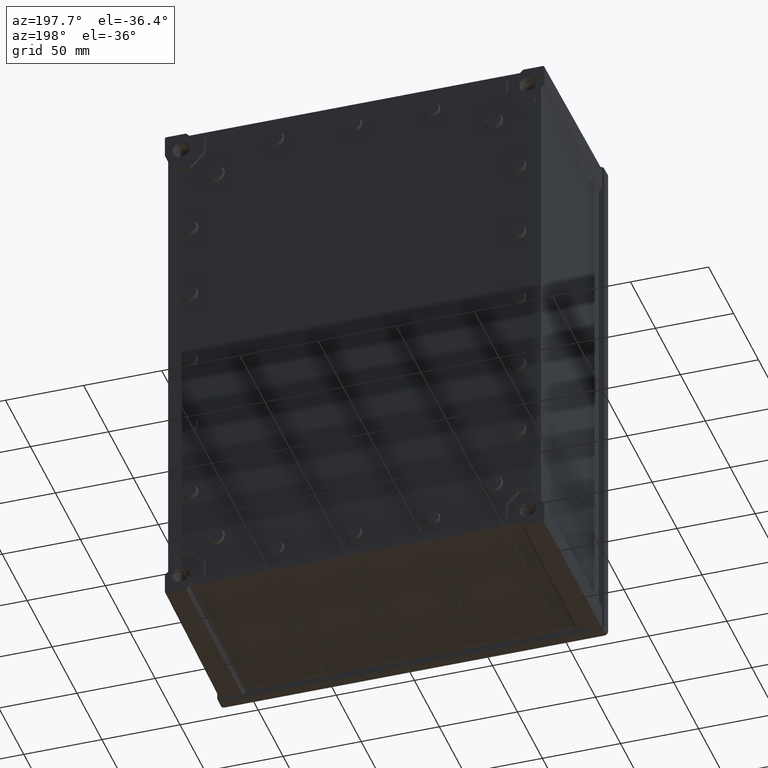
[diagram: clean part render]
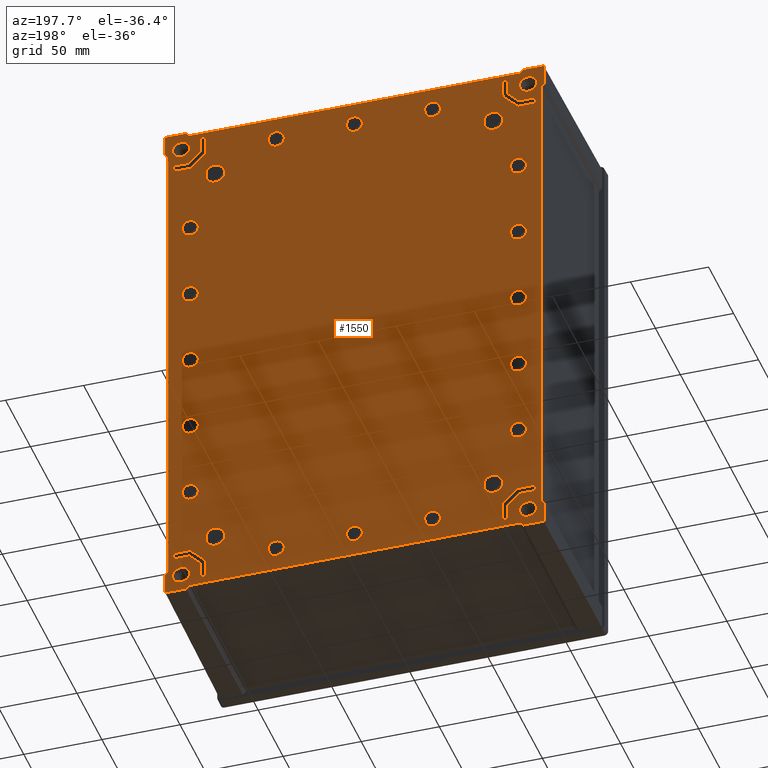
[diagram: same view with one face highlighted and labeled with its STEP entity id]
A machine part, auxiliary view. The second image highlights one B-rep face of the part: STEP entity #1550.
In plain terms, the highlighted planar face has unit normal (-0, 1, 0).
Its self-contained STEP definition (entity closure, byte-faithful):
#345 = EDGE_CURVE ( 'NONE', #4591, #4593, #8732, .T. ) ;
#349 = EDGE_CURVE ( 'NONE', #4583, #4585, #8847, .T. ) ;
#353 = EDGE_CURVE ( 'NONE', #4578, #4576, #8742, .T. ) ;
#357 = EDGE_CURVE ( 'NONE', #4568, #4570, #8855, .T. ) ;
#361 = EDGE_CURVE ( 'NONE', #4564, #4562, #6031, .T. ) ;
#365 = EDGE_CURVE ( 'NONE', #4556, #4554, #6099, .T. ) ;
#369 = EDGE_CURVE ( 'NONE', #4550, #4548, #6161, .T. ) ;
#373 = EDGE_CURVE ( 'NONE', #4542, #4540, #6219, .T. ) ;
#377 = EDGE_CURVE ( 'NONE', #4533, #4535, #6035, .T. ) ;
#381 = EDGE_CURVE ( 'NONE', #4897, #4527, #6272, .T. ) ;
#385 = EDGE_CURVE ( 'NONE', #4881, #4885, #6166, .T. ) ;
#389 = EDGE_CURVE ( 'NONE', #4865, #4869, #5993, .T. ) ;
#393 = EDGE_CURVE ( 'NONE', #4849, #4853, #5964, .T. ) ;
#397 = EDGE_CURVE ( 'NONE', #4827, #4837, #5916, .T. ) ;
#401 = EDGE_CURVE ( 'NONE', #4804, #4812, #5875, .T. ) ;
#405 = EDGE_CURVE ( 'NONE', #4769, #4776, #5833, .T. ) ;
#409 = EDGE_CURVE ( 'NONE', #4747, #4734, #5741, .T. ) ;
#413 = EDGE_CURVE ( 'NONE', #4711, #4698, #5699, .T. ) ;
#417 = EDGE_CURVE ( 'NONE', #4676, #4669, #5658, .T. ) ;
#421 = EDGE_CURVE ( 'NONE', #4646, #5665, #5616, .T. ) ;
#425 = EDGE_CURVE ( 'NONE', #5660, #5659, #5789, .T. ) ;
#1450 = EDGE_CURVE ( 'NONE', #5466, #5464, #6959, .T. ) ;
#1451 = EDGE_CURVE ( 'NONE', #5461, #5463, #6961, .T. ) ;
#1452 = EDGE_CURVE ( 'NONE', #5463, #5462, #6963, .T. ) ;
#1453 = EDGE_CURVE ( 'NONE', #5459, #5461, #18444, .T. ) ;
#1454 = EDGE_CURVE ( 'NONE', #5459, #5457, #6966, .T. ) ;
#1455 = EDGE_CURVE ( 'NONE', #5455, #5457, #6968, .T. ) ;
#1456 = EDGE_CURVE ( 'NONE', #5455, #5453, #6970, .T. ) ;
#1457 = EDGE_CURVE ( 'NONE', #5453, #5451, #6972, .T. ) ;
#1458 = EDGE_CURVE ( 'NONE', #5450, #5451, #6973, .T. ) ;
#1459 = EDGE_CURVE ( 'NONE', #5450, #5449, #18452, .T. ) ;
#1460 = EDGE_CURVE ( 'NONE', #5449, #5448, #6975, .T. ) ;
#1461 = EDGE_CURVE ( 'NONE', #5448, #5447, #6977, .T. ) ;
#1462 = EDGE_CURVE ( 'NONE', #5447, #5446, #6979, .T. ) ;
#1463 = EDGE_CURVE ( 'NONE', #5445, #5446, #6981, .T. ) ;
#1464 = EDGE_CURVE ( 'NONE', #5444, #5445, #6983, .T. ) ;
#1465 = EDGE_CURVE ( 'NONE', #5443, #5444, #18447, .T. ) ;
#1466 = EDGE_CURVE ( 'NONE', #5443, #5442, #6986, .T. ) ;
#1467 = EDGE_CURVE ( 'NONE', #5466, #5442, #6987, .T. ) ;
#1468 = EDGE_CURVE ( 'NONE', #5464, #5441, #6988, .T. ) ;
#1469 = EDGE_CURVE ( 'NONE', #5440, #5441, #6990, .T. ) ;
#1470 = EDGE_CURVE ( 'NONE', #5440, #5439, #18437, .T. ) ;
#1471 = EDGE_CURVE ( 'NONE', #5439, #5438, #6994, .T. ) ;
#1472 = EDGE_CURVE ( 'NONE', #5438, #5437, #6996, .T. ) ;
#1473 = EDGE_CURVE ( 'NONE', #5437, #5462, #6998, .T. ) ;
#1474 = EDGE_CURVE ( 'NONE', #5659, #5660, #18304, .T. ) ;
#1475 = EDGE_CURVE ( 'NONE', #5434, #5436, #7000, .T. ) ;
#1550 = ADVANCED_FACE ( 'NONE', ( #9371, #9372, #9373, #9374, #9375, #9376, #9377, #9378, #9379, #9380, #9381, #9382, #9383, #9384, #9385, #9386, #9387, #9388, #9389, #9390, #9391, #9392, #9393, #9394, #9395, #9396, #9397, #9398, #9399 ), #9172, .T. ) ;
#1576 = EDGE_CURVE ( 'NONE', #5436, #5435, #9429, .T. ) ;
#1577 = EDGE_CURVE ( 'NONE', #5433, #5434, #9431, .T. ) ;
#1578 = EDGE_CURVE ( 'NONE', #5432, #5433, #9432, .T. ) ;
#1579 = EDGE_CURVE ( 'NONE', #5431, #5432, #9433, .T. ) ;
#1580 = EDGE_CURVE ( 'NONE', #5430, #5431, #9434, .T. ) ;
#1581 = EDGE_CURVE ( 'NONE', #5429, #5430, #9435, .T. ) ;
#1582 = EDGE_CURVE ( 'NONE', #5435, #5429, #9436, .T. ) ;
#1583 = EDGE_CURVE ( 'NONE', #5665, #4646, #18341, .T. ) ;
#1584 = EDGE_CURVE ( 'NONE', #4669, #4676, #18208, .T. ) ;
#1585 = EDGE_CURVE ( 'NONE', #4698, #4711, #18258, .T. ) ;
#1586 = EDGE_CURVE ( 'NONE', #4734, #4747, #18173, .T. ) ;
#1587 = EDGE_CURVE ( 'NONE', #5427, #5426, #9437, .T. ) ;
#1588 = EDGE_CURVE ( 'NONE', #4593, #4591, #18324, .T. ) ;
#1589 = EDGE_CURVE ( 'NONE', #5428, #5427, #9438, .T. ) ;
#1590 = EDGE_CURVE ( 'NONE', #5426, #5425, #9439, .T. ) ;
#1591 = EDGE_CURVE ( 'NONE', #5425, #5424, #9440, .T. ) ;
#1592 = EDGE_CURVE ( 'NONE', #5424, #5423, #9441, .T. ) ;
#1593 = EDGE_CURVE ( 'NONE', #5423, #5422, #9442, .T. ) ;
#1594 = EDGE_CURVE ( 'NONE', #5422, #5421, #9443, .T. ) ;
#1595 = EDGE_CURVE ( 'NONE', #5421, #5428, #9444, .T. ) ;
#1596 = EDGE_CURVE ( 'NONE', #4776, #4769, #18328, .T. ) ;
#1597 = EDGE_CURVE ( 'NONE', #4812, #4804, #18330, .T. ) ;
#1598 = EDGE_CURVE ( 'NONE', #4837, #4827, #18335, .T. ) ;
#1599 = EDGE_CURVE ( 'NONE', #4853, #4849, #18191, .T. ) ;
#1600 = EDGE_CURVE ( 'NONE', #6247, #6245, #18170, .T. ) ;
#1601 = EDGE_CURVE ( 'NONE', #5419, #5418, #9445, .T. ) ;
#1602 = EDGE_CURVE ( 'NONE', #4570, #4568, #18162, .T. ) ;
#1603 = EDGE_CURVE ( 'NONE', #5420, #5419, #9446, .T. ) ;
#1604 = EDGE_CURVE ( 'NONE', #5418, #5417, #9447, .T. ) ;
#1605 = EDGE_CURVE ( 'NONE', #5417, #5416, #9448, .T. ) ;
#1606 = EDGE_CURVE ( 'NONE', #5416, #5415, #9449, .T. ) ;
#1607 = EDGE_CURVE ( 'NONE', #5415, #5414, #9450, .T. ) ;
#1608 = EDGE_CURVE ( 'NONE', #5414, #5413, #9451, .T. ) ;
#1609 = EDGE_CURVE ( 'NONE', #5413, #5420, #9452, .T. ) ;
#1610 = EDGE_CURVE ( 'NONE', #4869, #4865, #18167, .T. ) ;
#1611 = EDGE_CURVE ( 'NONE', #4885, #4881, #18165, .T. ) ;
#1612 = EDGE_CURVE ( 'NONE', #4527, #4897, #18163, .T. ) ;
#1613 = EDGE_CURVE ( 'NONE', #4535, #4533, #7293, .T. ) ;
#1614 = EDGE_CURVE ( 'NONE', #6267, #6265, #7355, .T. ) ;
#1615 = EDGE_CURVE ( 'NONE', #6280, #6282, #7347, .T. ) ;
#1616 = EDGE_CURVE ( 'NONE', #4540, #4542, #7345, .T. ) ;
#1617 = EDGE_CURVE ( 'NONE', #4548, #4550, #7354, .T. ) ;
#1618 = EDGE_CURVE ( 'NONE', #4554, #4556, #7352, .T. ) ;
#1619 = EDGE_CURVE ( 'NONE', #4562, #4564, #7349, .T. ) ;
#1620 = EDGE_CURVE ( 'NONE', #5409, #5412, #9453, .T. ) ;
#1621 = EDGE_CURVE ( 'NONE', #5412, #5411, #9454, .T. ) ;
#1622 = EDGE_CURVE ( 'NONE', #5408, #5409, #9455, .T. ) ;
#1623 = EDGE_CURVE ( 'NONE', #5407, #5408, #9456, .T. ) ;
#1624 = EDGE_CURVE ( 'NONE', #5406, #5407, #9457, .T. ) ;
#1625 = EDGE_CURVE ( 'NONE', #5405, #5406, #9458, .T. ) ;
#1626 = EDGE_CURVE ( 'NONE', #5404, #5405, #9459, .T. ) ;
#1627 = EDGE_CURVE ( 'NONE', #5411, #5404, #9460, .T. ) ;
#1628 = EDGE_CURVE ( 'NONE', #4576, #4578, #7324, .T. ) ;
#1629 = EDGE_CURVE ( 'NONE', #4585, #4583, #7341, .T. ) ;
#1724 = ORIENTED_EDGE ( 'NONE', *, *, #1470, .T. ) ;
#1725 = ORIENTED_EDGE ( 'NONE', *, *, #1467, .F. ) ;
#1726 = ORIENTED_EDGE ( 'NONE', *, *, #1466, .T. ) ;
#1727 = ORIENTED_EDGE ( 'NONE', *, *, #1469, .F. ) ;
#1728 = ORIENTED_EDGE ( 'NONE', *, *, #1474, .F. ) ;
#1729 = ORIENTED_EDGE ( 'NONE', *, *, #1576, .F. ) ;
#1730 = ORIENTED_EDGE ( 'NONE', *, *, #1471, .T. ) ;
#1731 = ORIENTED_EDGE ( 'NONE', *, *, #1450, .T. ) ;
#1732 = ORIENTED_EDGE ( 'NONE', *, *, #1472, .T. ) ;
#1733 = ORIENTED_EDGE ( 'NONE', *, *, #1473, .T. ) ;
#1734 = ORIENTED_EDGE ( 'NONE', *, *, #1465, .F. ) ;
#1735 = ORIENTED_EDGE ( 'NONE', *, *, #1468, .T. ) ;
#1736 = ORIENTED_EDGE ( 'NONE', *, *, #1579, .F. ) ;
#1737 = ORIENTED_EDGE ( 'NONE', *, *, #1580, .F. ) ;
#1758 = ORIENTED_EDGE ( 'NONE', *, *, #1475, .F. ) ;
#1759 = ORIENTED_EDGE ( 'NONE', *, *, #1578, .F. ) ;
#1760 = ORIENTED_EDGE ( 'NONE', *, *, #1581, .F. ) ;
#1761 = ORIENTED_EDGE ( 'NONE', *, *, #1577, .F. ) ;
#1762 = ORIENTED_EDGE ( 'NONE', *, *, #425, .F. ) ;
#1769 = ORIENTED_EDGE ( 'NONE', *, *, #1458, .F. ) ;
#1777 = ORIENTED_EDGE ( 'NONE', *, *, #1452, .F. ) ;
#1778 = ORIENTED_EDGE ( 'NONE', *, *, #1457, .T. ) ;
#1788 = ORIENTED_EDGE ( 'NONE', *, *, #1459, .T. ) ;
#1789 = ORIENTED_EDGE ( 'NONE', *, *, #1454, .T. ) ;
#1798 = ORIENTED_EDGE ( 'NONE', *, *, #1456, .T. ) ;
#1799 = ORIENTED_EDGE ( 'NONE', *, *, #1455, .F. ) ;
#1808 = ORIENTED_EDGE ( 'NONE', *, *, #1463, .F. ) ;
#1809 = ORIENTED_EDGE ( 'NONE', *, *, #1582, .F. ) ;
#1813 = ORIENTED_EDGE ( 'NONE', *, *, #1464, .F. ) ;
#1820 = ORIENTED_EDGE ( 'NONE', *, *, #1453, .F. ) ;
#1821 = ORIENTED_EDGE ( 'NONE', *, *, #1460, .T. ) ;
#1822 = ORIENTED_EDGE ( 'NONE', *, *, #1462, .T. ) ;
#1823 = ORIENTED_EDGE ( 'NONE', *, *, #1461, .T. ) ;
#1824 = ORIENTED_EDGE ( 'NONE', *, *, #1451, .F. ) ;
#4527 = VERTEX_POINT ( 'NONE', #16560 ) ;
#4533 = VERTEX_POINT ( 'NONE', #16563 ) ;
#4535 = VERTEX_POINT ( 'NONE', #16564 ) ;
#4540 = VERTEX_POINT ( 'NONE', #16567 ) ;
#4542 = VERTEX_POINT ( 'NONE', #16568 ) ;
#4548 = VERTEX_POINT ( 'NONE', #16571 ) ;
#4550 = VERTEX_POINT ( 'NONE', #16572 ) ;
#4554 = VERTEX_POINT ( 'NONE', #16575 ) ;
#4556 = VERTEX_POINT ( 'NONE', #16576 ) ;
#4562 = VERTEX_POINT ( 'NONE', #16579 ) ;
#4564 = VERTEX_POINT ( 'NONE', #16580 ) ;
#4568 = VERTEX_POINT ( 'NONE', #16583 ) ;
#4570 = VERTEX_POINT ( 'NONE', #16584 ) ;
#4576 = VERTEX_POINT ( 'NONE', #16587 ) ;
#4578 = VERTEX_POINT ( 'NONE', #16588 ) ;
#4583 = VERTEX_POINT ( 'NONE', #16591 ) ;
#4585 = VERTEX_POINT ( 'NONE', #16592 ) ;
#4591 = VERTEX_POINT ( 'NONE', #16595 ) ;
#4593 = VERTEX_POINT ( 'NONE', #16596 ) ;
#4646 = VERTEX_POINT ( 'NONE', #16625 ) ;
#4669 = VERTEX_POINT ( 'NONE', #16637 ) ;
#4676 = VERTEX_POINT ( 'NONE', #16641 ) ;
#4698 = VERTEX_POINT ( 'NONE', #16653 ) ;
#4711 = VERTEX_POINT ( 'NONE', #16660 ) ;
#4734 = VERTEX_POINT ( 'NONE', #16672 ) ;
#4747 = VERTEX_POINT ( 'NONE', #16679 ) ;
#4769 = VERTEX_POINT ( 'NONE', #16691 ) ;
#4776 = VERTEX_POINT ( 'NONE', #16695 ) ;
#4804 = VERTEX_POINT ( 'NONE', #16710 ) ;
#4812 = VERTEX_POINT ( 'NONE', #16714 ) ;
#4827 = VERTEX_POINT ( 'NONE', #16729 ) ;
#4837 = VERTEX_POINT ( 'NONE', #16739 ) ;
#4849 = VERTEX_POINT ( 'NONE', #16751 ) ;
#4853 = VERTEX_POINT ( 'NONE', #16755 ) ;
#4865 = VERTEX_POINT ( 'NONE', #16767 ) ;
#4869 = VERTEX_POINT ( 'NONE', #16771 ) ;
#4881 = VERTEX_POINT ( 'NONE', #16783 ) ;
#4885 = VERTEX_POINT ( 'NONE', #16787 ) ;
#4897 = VERTEX_POINT ( 'NONE', #16799 ) ;
#5404 = VERTEX_POINT ( 'NONE', #17298 ) ;
#5405 = VERTEX_POINT ( 'NONE', #17299 ) ;
#5406 = VERTEX_POINT ( 'NONE', #17300 ) ;
#5407 = VERTEX_POINT ( 'NONE', #17301 ) ;
#5408 = VERTEX_POINT ( 'NONE', #17302 ) ;
#5409 = VERTEX_POINT ( 'NONE', #17303 ) ;
#5411 = VERTEX_POINT ( 'NONE', #17305 ) ;
#5412 = VERTEX_POINT ( 'NONE', #17306 ) ;
#5413 = VERTEX_POINT ( 'NONE', #17307 ) ;
#5414 = VERTEX_POINT ( 'NONE', #17308 ) ;
#5415 = VERTEX_POINT ( 'NONE', #17309 ) ;
#5416 = VERTEX_POINT ( 'NONE', #17310 ) ;
#5417 = VERTEX_POINT ( 'NONE', #17311 ) ;
#5418 = VERTEX_POINT ( 'NONE', #17312 ) ;
#5419 = VERTEX_POINT ( 'NONE', #17313 ) ;
#5420 = VERTEX_POINT ( 'NONE', #17314 ) ;
#5421 = VERTEX_POINT ( 'NONE', #17315 ) ;
#5422 = VERTEX_POINT ( 'NONE', #17316 ) ;
#5423 = VERTEX_POINT ( 'NONE', #17317 ) ;
#5424 = VERTEX_POINT ( 'NONE', #17318 ) ;
#5425 = VERTEX_POINT ( 'NONE', #17319 ) ;
#5426 = VERTEX_POINT ( 'NONE', #17320 ) ;
#5427 = VERTEX_POINT ( 'NONE', #17321 ) ;
#5428 = VERTEX_POINT ( 'NONE', #17322 ) ;
#5429 = VERTEX_POINT ( 'NONE', #17323 ) ;
#5430 = VERTEX_POINT ( 'NONE', #17324 ) ;
#5431 = VERTEX_POINT ( 'NONE', #17325 ) ;
#5432 = VERTEX_POINT ( 'NONE', #17326 ) ;
#5433 = VERTEX_POINT ( 'NONE', #17327 ) ;
#5434 = VERTEX_POINT ( 'NONE', #17328 ) ;
#5435 = VERTEX_POINT ( 'NONE', #17329 ) ;
#5436 = VERTEX_POINT ( 'NONE', #17330 ) ;
#5437 = VERTEX_POINT ( 'NONE', #17331 ) ;
#5438 = VERTEX_POINT ( 'NONE', #17332 ) ;
#5439 = VERTEX_POINT ( 'NONE', #17333 ) ;
#5440 = VERTEX_POINT ( 'NONE', #17334 ) ;
#5441 = VERTEX_POINT ( 'NONE', #17335 ) ;
#5442 = VERTEX_POINT ( 'NONE', #17336 ) ;
#5443 = VERTEX_POINT ( 'NONE', #17337 ) ;
#5444 = VERTEX_POINT ( 'NONE', #17338 ) ;
#5445 = VERTEX_POINT ( 'NONE', #17339 ) ;
#5446 = VERTEX_POINT ( 'NONE', #17340 ) ;
#5447 = VERTEX_POINT ( 'NONE', #17341 ) ;
#5448 = VERTEX_POINT ( 'NONE', #17342 ) ;
#5449 = VERTEX_POINT ( 'NONE', #17343 ) ;
#5450 = VERTEX_POINT ( 'NONE', #17344 ) ;
#5451 = VERTEX_POINT ( 'NONE', #17345 ) ;
#5453 = VERTEX_POINT ( 'NONE', #17346 ) ;
#5455 = VERTEX_POINT ( 'NONE', #17347 ) ;
#5457 = VERTEX_POINT ( 'NONE', #17348 ) ;
#5459 = VERTEX_POINT ( 'NONE', #17349 ) ;
#5461 = VERTEX_POINT ( 'NONE', #17350 ) ;
#5462 = VERTEX_POINT ( 'NONE', #17351 ) ;
#5463 = VERTEX_POINT ( 'NONE', #17352 ) ;
#5464 = VERTEX_POINT ( 'NONE', #17353 ) ;
#5466 = VERTEX_POINT ( 'NONE', #17354 ) ;
#5569 = AXIS2_PLACEMENT_3D ( 'NONE', #7989, #7990, #7991 ) ;
#5613 = AXIS2_PLACEMENT_3D ( 'NONE', #7858, #7980, #7981 ) ;
#5616 = CIRCLE ( 'NONE', #5613, 4.999999999999997300 ) ;
#5649 = AXIS2_PLACEMENT_3D ( 'NONE', #7846, #7847, #7848 ) ;
#5658 = CIRCLE ( 'NONE', #5649, 5.000000000000004400 ) ;
#5659 = VERTEX_POINT ( 'NONE', #17484 ) ;
#5660 = VERTEX_POINT ( 'NONE', #17485 ) ;
#5665 = VERTEX_POINT ( 'NONE', #17488 ) ;
#5694 = AXIS2_PLACEMENT_3D ( 'NONE', #7836, #7837, #7838 ) ;
#5699 = CIRCLE ( 'NONE', #5694, 6.000000000000005300 ) ;
#5735 = AXIS2_PLACEMENT_3D ( 'NONE', #7826, #7827, #7828 ) ;
#5741 = CIRCLE ( 'NONE', #5735, 5.000000000000004400 ) ;
#5783 = AXIS2_PLACEMENT_3D ( 'NONE', #7816, #7817, #7818 ) ;
#5789 = CIRCLE ( 'NONE', #5569, 5.000000000000004400 ) ;
#5828 = AXIS2_PLACEMENT_3D ( 'NONE', #7806, #7807, #7808 ) ;
#5833 = CIRCLE ( 'NONE', #5783, 4.999999999999997300 ) ;
#5869 = AXIS2_PLACEMENT_3D ( 'NONE', #7796, #7797, #7798 ) ;
#5875 = CIRCLE ( 'NONE', #5828, 5.000000000000004400 ) ;
#5911 = AXIS2_PLACEMENT_3D ( 'NONE', #7786, #7787, #7788 ) ;
#5916 = CIRCLE ( 'NONE', #5869, 6.000000000000005300 ) ;
#5952 = EDGE_LOOP ( 'NONE', ( #8559, #8557 ) ) ;
#5953 = EDGE_LOOP ( 'NONE', ( #1728, #1762 ) ) ;
#5954 = EDGE_LOOP ( 'NONE', ( #1729, #1758, #1761, #1759, #1736, #1737, #1760, #1809 ) ) ;
#5956 = EDGE_LOOP ( 'NONE', ( #8519, #8554 ) ) ;
#5957 = AXIS2_PLACEMENT_3D ( 'NONE', #7776, #7777, #7778 ) ;
#5958 = EDGE_LOOP ( 'NONE', ( #8520, #8434 ) ) ;
#5960 = EDGE_LOOP ( 'NONE', ( #8555, #8429 ) ) ;
#5961 = EDGE_LOOP ( 'NONE', ( #8440, #8425 ) ) ;
#5963 = EDGE_LOOP ( 'NONE', ( #8431, #8422 ) ) ;
#5965 = EDGE_LOOP ( 'NONE', ( #8414, #8406, #8412, #8402, #8399, #8395, #8393, #8387 ) ) ;
#5964 = CIRCLE ( 'NONE', #5911, 5.000000000000004400 ) ;
#5966 = EDGE_LOOP ( 'NONE', ( #8380, #8379 ) ) ;
#5967 = EDGE_LOOP ( 'NONE', ( #8362, #8372 ) ) ;
#5969 = EDGE_LOOP ( 'NONE', ( #8361, #8367 ) ) ;
#5971 = EDGE_LOOP ( 'NONE', ( #8547, #8548 ) ) ;
#5973 = EDGE_LOOP ( 'NONE', ( #8510, #8509 ) ) ;
#5974 = EDGE_LOOP ( 'NONE', ( #8384, #8508 ) ) ;
#5976 = EDGE_LOOP ( 'NONE', ( #8494, #8492, #8493, #8491, #8490, #8489, #8488, #8487 ) ) ;
#5978 = EDGE_LOOP ( 'NONE', ( #8473, #8478 ) ) ;
#5980 = EDGE_LOOP ( 'NONE', ( #8465, #8471 ) ) ;
#5981 = EDGE_LOOP ( 'NONE', ( #8453, #8459 ) ) ;
#5982 = EDGE_LOOP ( 'NONE', ( #8449, #8447 ) ) ;
#5983 = EDGE_LOOP ( 'NONE', ( #8480, #8550 ) ) ;
#5985 = EDGE_LOOP ( 'NONE', ( #8549, #8330 ) ) ;
#5986 = EDGE_LOOP ( 'NONE', ( #8558, #8327 ) ) ;
#5988 = AXIS2_PLACEMENT_3D ( 'NONE', #7766, #7767, #7768 ) ;
#5993 = CIRCLE ( 'NONE', #5957, 4.999999999999997300 ) ;
#5999 = AXIS2_PLACEMENT_3D ( 'NONE', #7696, #7697, #7698 ) ;
#6027 = AXIS2_PLACEMENT_3D ( 'NONE', #7706, #7707, #7708 ) ;
#6031 = CIRCLE ( 'NONE', #6027, 4.999999999999997300 ) ;
#6035 = CIRCLE ( 'NONE', #6279, 5.000000000000004400 ) ;
#6099 = CIRCLE ( 'NONE', #6107, 5.000000000000004400 ) ;
#6107 = AXIS2_PLACEMENT_3D ( 'NONE', #7716, #7717, #7718 ) ;
#6139 = EDGE_LOOP ( 'NONE', ( #1777, #1824, #1820, #1789, #1799, #1798, #1778, #1769, #1788, #1821, #1823, #1822, #1808, #1813, #1734, #1726, #1725, #1731, #1735, #1727, #1724, #1730, #1732, #1733 ) ) ;
#6143 = EDGE_LOOP ( 'NONE', ( #8546, #8294 ) ) ;
#6145 = EDGE_LOOP ( 'NONE', ( #8324, #8291 ) ) ;
#6146 = EDGE_LOOP ( 'NONE', ( #8241, #8552, #8553, #8551, #8524, #8523, #8522, #8506 ) ) ;
#6147 = EDGE_LOOP ( 'NONE', ( #8504, #8531 ) ) ;
#6149 = EDGE_LOOP ( 'NONE', ( #8505, #8532 ) ) ;
#6161 = CIRCLE ( 'NONE', #6170, 6.000000000000005300 ) ;
#6166 = CIRCLE ( 'NONE', #5988, 5.000000000000004400 ) ;
#6168 = AXIS2_PLACEMENT_3D ( 'NONE', #7756, #7757, #7758 ) ;
#6170 = AXIS2_PLACEMENT_3D ( 'NONE', #7726, #7727, #7728 ) ;
#6219 = CIRCLE ( 'NONE', #6226, 5.000000000000004400 ) ;
#6226 = AXIS2_PLACEMENT_3D ( 'NONE', #7736, #7737, #7738 ) ;
#6245 = VERTEX_POINT ( 'NONE', #17507 ) ;
#6247 = VERTEX_POINT ( 'NONE', #17508 ) ;
#6265 = VERTEX_POINT ( 'NONE', #17521 ) ;
#6267 = VERTEX_POINT ( 'NONE', #17522 ) ;
#6272 = CIRCLE ( 'NONE', #6168, 6.000000000000005300 ) ;
#6279 = AXIS2_PLACEMENT_3D ( 'NONE', #7746, #7747, #7748 ) ;
#6280 = VERTEX_POINT ( 'NONE', #17531 ) ;
#6282 = VERTEX_POINT ( 'NONE', #17532 ) ;
#6959 = LINE ( 'NONE', #8481, #18315 ) ;
#6961 = LINE ( 'NONE', #8483, #18314 ) ;
#6963 = LINE ( 'NONE', #8485, #18316 ) ;
#6966 = LINE ( 'NONE', #8765, #18313 ) ;
#6968 = LINE ( 'NONE', #8769, #18312 ) ;
#6970 = LINE ( 'NONE', #8773, #18311 ) ;
#6972 = LINE ( 'NONE', #8777, #18310 ) ;
#6973 = LINE ( 'NONE', #8780, #18308 ) ;
#6975 = LINE ( 'NONE', #8793, #18307 ) ;
#6977 = LINE ( 'NONE', #8796, #18306 ) ;
#6979 = LINE ( 'NONE', #8800, #18305 ) ;
#6981 = LINE ( 'NONE', #8803, #18302 ) ;
#6983 = LINE ( 'NONE', #8808, #18301 ) ;
#6986 = LINE ( 'NONE', #8821, #18300 ) ;
#6987 = LINE ( 'NONE', #8824, #18298 ) ;
#6988 = LINE ( 'NONE', #8827, #18297 ) ;
#6990 = LINE ( 'NONE', #8830, #18294 ) ;
#6994 = LINE ( 'NONE', #8840, #18293 ) ;
#6996 = LINE ( 'NONE', #8844, #18292 ) ;
#6998 = LINE ( 'NONE', #8848, #18290 ) ;
#7000 = LINE ( 'NONE', #8857, #18287 ) ;
#7289 = AXIS2_PLACEMENT_3D ( 'NONE', #10523, #10524, #10525 ) ;
#7290 = VECTOR ( 'NONE', #9343, 1000.000000000000100 ) ;
#7292 = VECTOR ( 'NONE', #9345, 1000.000000000000000 ) ;
#7293 = CIRCLE ( 'NONE', #7351, 5.000000000000004400 ) ;
#7294 = VECTOR ( 'NONE', #10517, 1000.000000000000000 ) ;
#7320 = AXIS2_PLACEMENT_3D ( 'NONE', #10569, #10570, #10571 ) ;
#7322 = AXIS2_PLACEMENT_3D ( 'NONE', #10566, #10567, #10568 ) ;
#7323 = VECTOR ( 'NONE', #10565, 1000.000000000000000 ) ;
#7324 = CIRCLE ( 'NONE', #7322, 5.000000000000004400 ) ;
#7326 = VECTOR ( 'NONE', #10563, 1000.000000000000100 ) ;
#7330 = VECTOR ( 'NONE', #10561, 1000.000000000000000 ) ;
#7331 = VECTOR ( 'NONE', #10559, 1000.000000000000000 ) ;
#7332 = VECTOR ( 'NONE', #10557, 1000.000000000000000 ) ;
#7334 = VECTOR ( 'NONE', #10555, 1000.000000000000100 ) ;
#7336 = VECTOR ( 'NONE', #10553, 1000.000000000000000 ) ;
#7338 = VECTOR ( 'NONE', #10551, 1000.000000000000000 ) ;
#7339 = AXIS2_PLACEMENT_3D ( 'NONE', #10547, #10548, #10549 ) ;
#7340 = AXIS2_PLACEMENT_3D ( 'NONE', #10544, #10545, #10546 ) ;
#7341 = CIRCLE ( 'NONE', #7320, 5.000000000000004400 ) ;
#7343 = AXIS2_PLACEMENT_3D ( 'NONE', #10541, #10542, #10543 ) ;
#7344 = AXIS2_PLACEMENT_3D ( 'NONE', #10538, #10539, #10540 ) ;
#7345 = CIRCLE ( 'NONE', #7344, 5.000000000000004400 ) ;
#7346 = AXIS2_PLACEMENT_3D ( 'NONE', #10535, #10536, #10537 ) ;
#7347 = CIRCLE ( 'NONE', #7346, 5.449999999999996600 ) ;
#7348 = AXIS2_PLACEMENT_3D ( 'NONE', #10532, #10533, #10534 ) ;
#7349 = CIRCLE ( 'NONE', #7339, 4.999999999999997300 ) ;
#7351 = AXIS2_PLACEMENT_3D ( 'NONE', #10529, #10530, #10531 ) ;
#7352 = CIRCLE ( 'NONE', #7340, 5.000000000000004400 ) ;
#7353 = AXIS2_PLACEMENT_3D ( 'NONE', #10526, #10527, #10528 ) ;
#7354 = CIRCLE ( 'NONE', #7343, 6.000000000000005300 ) ;
#7355 = CIRCLE ( 'NONE', #7348, 5.449999999999996600 ) ;
#7356 = AXIS2_PLACEMENT_3D ( 'NONE', #10520, #10521, #10522 ) ;
#7357 = VECTOR ( 'NONE', #10519, 1000.000000000000000 ) ;
#7666 = CARTESIAN_POINT ( 'NONE',  ( 111.0000000000000000, 120.0000000000000000, -161.0000000000000000 ) ) ;
#7667 = DIRECTION ( 'NONE',  ( 0.0000000000000000000, -1.000000000000000000, 0.0000000000000000000 ) ) ;
#7668 = DIRECTION ( 'NONE',  ( -1.000000000000000000, 0.0000000000000000000, 0.0000000000000000000 ) ) ;
#7676 = CARTESIAN_POINT ( 'NONE',  ( 105.0000000000000000, 120.0000000000000000, 0.0000000000000000000 ) ) ;
#7677 = DIRECTION ( 'NONE',  ( 0.0000000000000000000, -1.000000000000000000, 0.0000000000000000000 ) ) ;
#7678 = DIRECTION ( 'NONE',  ( -1.000000000000000000, 0.0000000000000000000, 0.0000000000000000000 ) ) ;
#7686 = CARTESIAN_POINT ( 'NONE',  ( -105.0000000000000000, 120.0000000000000000, 0.0000000000000000000 ) ) ;
#7687 = DIRECTION ( 'NONE',  ( 0.0000000000000000000, 1.000000000000000000, 0.0000000000000000000 ) ) ;
#7688 = DIRECTION ( 'NONE',  ( 1.000000000000000000, 0.0000000000000000000, 0.0000000000000000000 ) ) ;
#7696 = CARTESIAN_POINT ( 'NONE',  ( 0.0000000000000000000, 120.0000000000000000, 155.0000000000000000 ) ) ;
#7697 = DIRECTION ( 'NONE',  ( 0.0000000000000000000, -1.000000000000000000, 0.0000000000000000000 ) ) ;
#7698 = DIRECTION ( 'NONE',  ( 0.0000000000000000000, 0.0000000000000000000, -1.000000000000000000 ) ) ;
#7706 = CARTESIAN_POINT ( 'NONE',  ( -105.0000000000000000, 120.0000000000000000, 50.00000000000000000 ) ) ;
#7707 = DIRECTION ( 'NONE',  ( 0.0000000000000000000, 1.000000000000000000, 0.0000000000000000000 ) ) ;
#7708 = DIRECTION ( 'NONE',  ( 0.0000000000000000000, 0.0000000000000000000, 1.000000000000000000 ) ) ;
#7716 = CARTESIAN_POINT ( 'NONE',  ( -105.0000000000000000, 120.0000000000000000, 100.0000000000000000 ) ) ;
#7717 = DIRECTION ( 'NONE',  ( 0.0000000000000000000, 1.000000000000000000, 0.0000000000000000000 ) ) ;
#7718 = DIRECTION ( 'NONE',  ( 0.0000000000000000000, 0.0000000000000000000, 1.000000000000000000 ) ) ;
#7726 = CARTESIAN_POINT ( 'NONE',  ( -89.00000000000000000, 120.0000000000000000, 137.5000000000000000 ) ) ;
#7727 = DIRECTION ( 'NONE',  ( 0.0000000000000000000, 1.000000000000000000, 0.0000000000000000000 ) ) ;
#7728 = DIRECTION ( 'NONE',  ( 0.0000000000000000000, 0.0000000000000000000, 1.000000000000000000 ) ) ;
#7736 = CARTESIAN_POINT ( 'NONE',  ( -50.00000000000000000, 120.0000000000000000, 155.0000000000000000 ) ) ;
#7737 = DIRECTION ( 'NONE',  ( 0.0000000000000000000, 1.000000000000000000, 0.0000000000000000000 ) ) ;
#7738 = DIRECTION ( 'NONE',  ( 0.0000000000000000000, 0.0000000000000000000, 1.000000000000000000 ) ) ;
#7746 = CARTESIAN_POINT ( 'NONE',  ( 50.00000000000000000, 120.0000000000000000, 155.0000000000000000 ) ) ;
#7747 = DIRECTION ( 'NONE',  ( 0.0000000000000000000, -1.000000000000000000, 0.0000000000000000000 ) ) ;
#7748 = DIRECTION ( 'NONE',  ( 0.0000000000000000000, 0.0000000000000000000, 1.000000000000000000 ) ) ;
#7756 = CARTESIAN_POINT ( 'NONE',  ( 89.00000000000000000, 120.0000000000000000, 137.5000000000000000 ) ) ;
#7757 = DIRECTION ( 'NONE',  ( 0.0000000000000000000, -1.000000000000000000, 0.0000000000000000000 ) ) ;
#7758 = DIRECTION ( 'NONE',  ( 0.0000000000000000000, 0.0000000000000000000, 1.000000000000000000 ) ) ;
#7766 = CARTESIAN_POINT ( 'NONE',  ( 105.0000000000000000, 120.0000000000000000, 100.0000000000000000 ) ) ;
#7767 = DIRECTION ( 'NONE',  ( 0.0000000000000000000, -1.000000000000000000, 0.0000000000000000000 ) ) ;
#7768 = DIRECTION ( 'NONE',  ( 0.0000000000000000000, 0.0000000000000000000, 1.000000000000000000 ) ) ;
#7776 = CARTESIAN_POINT ( 'NONE',  ( 105.0000000000000000, 120.0000000000000000, 50.00000000000000000 ) ) ;
#7777 = DIRECTION ( 'NONE',  ( 0.0000000000000000000, -1.000000000000000000, 0.0000000000000000000 ) ) ;
#7778 = DIRECTION ( 'NONE',  ( 0.0000000000000000000, 0.0000000000000000000, 1.000000000000000000 ) ) ;
#7786 = CARTESIAN_POINT ( 'NONE',  ( -50.00000000000000000, 120.0000000000000000, -155.0000000000000000 ) ) ;
#7787 = DIRECTION ( 'NONE',  ( 0.0000000000000000000, -1.000000000000000000, 0.0000000000000000000 ) ) ;
#7788 = DIRECTION ( 'NONE',  ( 0.0000000000000000000, 0.0000000000000000000, -1.000000000000000000 ) ) ;
#7796 = CARTESIAN_POINT ( 'NONE',  ( -89.00000000000000000, 120.0000000000000000, -137.5000000000000000 ) ) ;
#7797 = DIRECTION ( 'NONE',  ( 0.0000000000000000000, -1.000000000000000000, 0.0000000000000000000 ) ) ;
#7798 = DIRECTION ( 'NONE',  ( 0.0000000000000000000, 0.0000000000000000000, -1.000000000000000000 ) ) ;
#7806 = CARTESIAN_POINT ( 'NONE',  ( -105.0000000000000000, 120.0000000000000000, -100.0000000000000000 ) ) ;
#7807 = DIRECTION ( 'NONE',  ( 0.0000000000000000000, -1.000000000000000000, 0.0000000000000000000 ) ) ;
#7808 = DIRECTION ( 'NONE',  ( 0.0000000000000000000, 0.0000000000000000000, -1.000000000000000000 ) ) ;
#7816 = CARTESIAN_POINT ( 'NONE',  ( -105.0000000000000000, 120.0000000000000000, -50.00000000000000000 ) ) ;
#7817 = DIRECTION ( 'NONE',  ( 0.0000000000000000000, -1.000000000000000000, 0.0000000000000000000 ) ) ;
#7818 = DIRECTION ( 'NONE',  ( 0.0000000000000000000, 0.0000000000000000000, -1.000000000000000000 ) ) ;
#7826 = CARTESIAN_POINT ( 'NONE',  ( 50.00000000000000000, 120.0000000000000000, -155.0000000000000000 ) ) ;
#7827 = DIRECTION ( 'NONE',  ( 0.0000000000000000000, 1.000000000000000000, 0.0000000000000000000 ) ) ;
#7828 = DIRECTION ( 'NONE',  ( 0.0000000000000000000, 0.0000000000000000000, -1.000000000000000000 ) ) ;
#7836 = CARTESIAN_POINT ( 'NONE',  ( 89.00000000000000000, 120.0000000000000000, -137.5000000000000000 ) ) ;
#7837 = DIRECTION ( 'NONE',  ( 0.0000000000000000000, 1.000000000000000000, 0.0000000000000000000 ) ) ;
#7838 = DIRECTION ( 'NONE',  ( 0.0000000000000000000, 0.0000000000000000000, -1.000000000000000000 ) ) ;
#7846 = CARTESIAN_POINT ( 'NONE',  ( 105.0000000000000000, 120.0000000000000000, -100.0000000000000000 ) ) ;
#7847 = DIRECTION ( 'NONE',  ( 0.0000000000000000000, 1.000000000000000000, 0.0000000000000000000 ) ) ;
#7848 = DIRECTION ( 'NONE',  ( 0.0000000000000000000, 0.0000000000000000000, -1.000000000000000000 ) ) ;
#7858 = CARTESIAN_POINT ( 'NONE',  ( 105.0000000000000000, 120.0000000000000000, -50.00000000000000000 ) ) ;
#7888 = EDGE_CURVE ( 'NONE', #6282, #6280, #15272, .T. ) ;
#7897 = EDGE_CURVE ( 'NONE', #6265, #6267, #17751, .T. ) ;
#7910 = EDGE_CURVE ( 'NONE', #6245, #6247, #17771, .T. ) ;
#7980 = DIRECTION ( 'NONE',  ( 0.0000000000000000000, 1.000000000000000000, 0.0000000000000000000 ) ) ;
#7981 = DIRECTION ( 'NONE',  ( 0.0000000000000000000, 0.0000000000000000000, -1.000000000000000000 ) ) ;
#7989 = CARTESIAN_POINT ( 'NONE',  ( 0.0000000000000000000, 120.0000000000000000, -155.0000000000000000 ) ) ;
#7990 = DIRECTION ( 'NONE',  ( 0.0000000000000000000, 1.000000000000000000, 0.0000000000000000000 ) ) ;
#7991 = DIRECTION ( 'NONE',  ( 0.0000000000000000000, 0.0000000000000000000, 1.000000000000000000 ) ) ;
#8241 = ORIENTED_EDGE ( 'NONE', *, *, #1621, .F. ) ;
#8291 = ORIENTED_EDGE ( 'NONE', *, *, #361, .F. ) ;
#8294 = ORIENTED_EDGE ( 'NONE', *, *, #365, .F. ) ;
#8324 = ORIENTED_EDGE ( 'NONE', *, *, #1619, .F. ) ;
#8327 = ORIENTED_EDGE ( 'NONE', *, *, #369, .F. ) ;
#8330 = ORIENTED_EDGE ( 'NONE', *, *, #373, .F. ) ;
#8361 = ORIENTED_EDGE ( 'NONE', *, *, #397, .T. ) ;
#8362 = ORIENTED_EDGE ( 'NONE', *, *, #401, .T. ) ;
#8367 = ORIENTED_EDGE ( 'NONE', *, *, #1598, .T. ) ;
#8372 = ORIENTED_EDGE ( 'NONE', *, *, #1597, .T. ) ;
#8379 = ORIENTED_EDGE ( 'NONE', *, *, #1596, .T. ) ;
#8380 = ORIENTED_EDGE ( 'NONE', *, *, #405, .T. ) ;
#8384 = ORIENTED_EDGE ( 'NONE', *, *, #357, .T. ) ;
#8387 = ORIENTED_EDGE ( 'NONE', *, *, #1595, .T. ) ;
#8393 = ORIENTED_EDGE ( 'NONE', *, *, #1594, .T. ) ;
#8395 = ORIENTED_EDGE ( 'NONE', *, *, #1593, .T. ) ;
#8399 = ORIENTED_EDGE ( 'NONE', *, *, #1592, .T. ) ;
#8402 = ORIENTED_EDGE ( 'NONE', *, *, #1591, .T. ) ;
#8406 = ORIENTED_EDGE ( 'NONE', *, *, #1587, .T. ) ;
#8412 = ORIENTED_EDGE ( 'NONE', *, *, #1590, .T. ) ;
#8414 = ORIENTED_EDGE ( 'NONE', *, *, #1589, .T. ) ;
#8422 = ORIENTED_EDGE ( 'NONE', *, *, #1588, .T. ) ;
#8425 = ORIENTED_EDGE ( 'NONE', *, *, #409, .F. ) ;
#8429 = ORIENTED_EDGE ( 'NONE', *, *, #413, .F. ) ;
#8431 = ORIENTED_EDGE ( 'NONE', *, *, #345, .T. ) ;
#8434 = ORIENTED_EDGE ( 'NONE', *, *, #417, .F. ) ;
#8440 = ORIENTED_EDGE ( 'NONE', *, *, #1586, .F. ) ;
#8447 = ORIENTED_EDGE ( 'NONE', *, *, #1613, .T. ) ;
#8449 = ORIENTED_EDGE ( 'NONE', *, *, #377, .T. ) ;
#8453 = ORIENTED_EDGE ( 'NONE', *, *, #381, .T. ) ;
#8459 = ORIENTED_EDGE ( 'NONE', *, *, #1612, .T. ) ;
#8465 = ORIENTED_EDGE ( 'NONE', *, *, #385, .T. ) ;
#8471 = ORIENTED_EDGE ( 'NONE', *, *, #1611, .T. ) ;
#8473 = ORIENTED_EDGE ( 'NONE', *, *, #389, .T. ) ;
#8478 = ORIENTED_EDGE ( 'NONE', *, *, #1610, .T. ) ;
#8480 = ORIENTED_EDGE ( 'NONE', *, *, #7888, .T. ) ;
#8481 = CARTESIAN_POINT ( 'NONE',  ( 119.3527758651000000, 120.0000000000000000, 156.8337744394999900 ) ) ;
#8482 = DIRECTION ( 'NONE',  ( 0.0000000000000000000, 0.0000000000000000000, -1.000000000000000000 ) ) ;
#8483 = CARTESIAN_POINT ( 'NONE',  ( -120.4528139420000100, 120.0000000000000000, -172.4527758650999900 ) ) ;
#8484 = DIRECTION ( 'NONE',  ( 1.000000000000000000, 0.0000000000000000000, 0.0000000000000000000 ) ) ;
#8485 = CARTESIAN_POINT ( 'NONE',  ( -107.9337744395000000, 120.0000000000000000, -172.4527758650999900 ) ) ;
#8486 = DIRECTION ( 'NONE',  ( 0.7071067811864976100, 0.0000000000000000000, 0.7071067811865975300 ) ) ;
#8487 = ORIENTED_EDGE ( 'NONE', *, *, #1609, .T. ) ;
#8488 = ORIENTED_EDGE ( 'NONE', *, *, #1608, .T. ) ;
#8489 = ORIENTED_EDGE ( 'NONE', *, *, #1607, .T. ) ;
#8490 = ORIENTED_EDGE ( 'NONE', *, *, #1606, .T. ) ;
#8491 = ORIENTED_EDGE ( 'NONE', *, *, #1605, .T. ) ;
#8492 = ORIENTED_EDGE ( 'NONE', *, *, #1601, .T. ) ;
#8493 = ORIENTED_EDGE ( 'NONE', *, *, #1604, .T. ) ;
#8494 = ORIENTED_EDGE ( 'NONE', *, *, #1603, .T. ) ;
#8504 = ORIENTED_EDGE ( 'NONE', *, *, #1628, .F. ) ;
#8505 = ORIENTED_EDGE ( 'NONE', *, *, #349, .T. ) ;
#8506 = ORIENTED_EDGE ( 'NONE', *, *, #1627, .F. ) ;
#8508 = ORIENTED_EDGE ( 'NONE', *, *, #1602, .T. ) ;
#8509 = ORIENTED_EDGE ( 'NONE', *, *, #7910, .F. ) ;
#8510 = ORIENTED_EDGE ( 'NONE', *, *, #1600, .F. ) ;
#8519 = ORIENTED_EDGE ( 'NONE', *, *, #1583, .F. ) ;
#8520 = ORIENTED_EDGE ( 'NONE', *, *, #1584, .F. ) ;
#8522 = ORIENTED_EDGE ( 'NONE', *, *, #1626, .F. ) ;
#8523 = ORIENTED_EDGE ( 'NONE', *, *, #1625, .F. ) ;
#8524 = ORIENTED_EDGE ( 'NONE', *, *, #1624, .F. ) ;
#8531 = ORIENTED_EDGE ( 'NONE', *, *, #353, .F. ) ;
#8532 = ORIENTED_EDGE ( 'NONE', *, *, #1629, .T. ) ;
#8546 = ORIENTED_EDGE ( 'NONE', *, *, #1618, .F. ) ;
#8547 = ORIENTED_EDGE ( 'NONE', *, *, #393, .T. ) ;
#8548 = ORIENTED_EDGE ( 'NONE', *, *, #1599, .T. ) ;
#8549 = ORIENTED_EDGE ( 'NONE', *, *, #1616, .F. ) ;
#8550 = ORIENTED_EDGE ( 'NONE', *, *, #1615, .T. ) ;
#8551 = ORIENTED_EDGE ( 'NONE', *, *, #1623, .F. ) ;
#8552 = ORIENTED_EDGE ( 'NONE', *, *, #1620, .F. ) ;
#8553 = ORIENTED_EDGE ( 'NONE', *, *, #1622, .F. ) ;
#8554 = ORIENTED_EDGE ( 'NONE', *, *, #421, .F. ) ;
#8555 = ORIENTED_EDGE ( 'NONE', *, *, #1585, .F. ) ;
#8557 = ORIENTED_EDGE ( 'NONE', *, *, #7897, .F. ) ;
#8558 = ORIENTED_EDGE ( 'NONE', *, *, #1617, .F. ) ;
#8559 = ORIENTED_EDGE ( 'NONE', *, *, #1614, .F. ) ;
#8732 = CIRCLE ( 'NONE', #8743, 5.449999999999996600 ) ;
#8742 = CIRCLE ( 'NONE', #8879, 5.000000000000004400 ) ;
#8743 = AXIS2_PLACEMENT_3D ( 'NONE', #7666, #7667, #7668 ) ;
#8757 = CARTESIAN_POINT ( 'NONE',  ( -121.4527758651163200, 120.0000000000000000, -171.4528139420342500 ) ) ;
#8758 = CARTESIAN_POINT ( 'NONE',  ( -121.4527758651527300, 120.0000000000000000, -172.0385873128446400 ) ) ;
#8760 = CARTESIAN_POINT ( 'NONE',  ( -121.0385873128446400, 120.0000000000000000, -172.4527758651527700 ) ) ;
#8762 = CARTESIAN_POINT ( 'NONE',  ( -120.4528139420342500, 120.0000000000000000, -172.4527758651163400 ) ) ;
#8765 = CARTESIAN_POINT ( 'NONE',  ( -121.4527758650999900, 120.0000000000000000, -171.4528139420000100 ) ) ;
#8767 = DIRECTION ( 'NONE',  ( 0.0000000000000000000, 0.0000000000000000000, 1.000000000000000000 ) ) ;
#8769 = CARTESIAN_POINT ( 'NONE',  ( -119.3527758651000000, 120.0000000000000000, -156.8337744394999900 ) ) ;
#8770 = DIRECTION ( 'NONE',  ( -0.7071067811865975300, 0.0000000000000000000, -0.7071067811864976100 ) ) ;
#8773 = CARTESIAN_POINT ( 'NONE',  ( -119.3527758651000000, 120.0000000000000000, -156.8337744394999900 ) ) ;
#8775 = DIRECTION ( 'NONE',  ( 0.0000000000000000000, 0.0000000000000000000, 1.000000000000000000 ) ) ;
#8777 = CARTESIAN_POINT ( 'NONE',  ( -119.3527758651000000, 120.0000000000000000, 156.8337744394999900 ) ) ;
#8779 = DIRECTION ( 'NONE',  ( -0.7071067811865975300, 0.0000000000000000000, 0.7071067811864976100 ) ) ;
#8780 = CARTESIAN_POINT ( 'NONE',  ( -121.4527758650999900, 120.0000000000000000, 171.4528139420000100 ) ) ;
#8782 = DIRECTION ( 'NONE',  ( 0.0000000000000000000, 0.0000000000000000000, -1.000000000000000000 ) ) ;
#8784 = CARTESIAN_POINT ( 'NONE',  ( -121.4527758651163200, 120.0000000000000000, 171.4528139420342500 ) ) ;
#8785 = CARTESIAN_POINT ( 'NONE',  ( -121.4527758651526900, 120.0000000000000000, 172.0385873128446700 ) ) ;
#8787 = CARTESIAN_POINT ( 'NONE',  ( -121.0385873128446500, 120.0000000000000000, 172.4527758651527400 ) ) ;
#8789 = CARTESIAN_POINT ( 'NONE',  ( -120.4528139420342500, 120.0000000000000000, 172.4527758651163400 ) ) ;
#8793 = CARTESIAN_POINT ( 'NONE',  ( -120.4528139420000100, 120.0000000000000000, 172.4527758650999900 ) ) ;
#8794 = DIRECTION ( 'NONE',  ( 1.000000000000000000, 0.0000000000000000000, 0.0000000000000000000 ) ) ;
#8796 = CARTESIAN_POINT ( 'NONE',  ( -107.9337744395000000, 120.0000000000000000, 172.4527758650999900 ) ) ;
#8798 = DIRECTION ( 'NONE',  ( 0.7071067811864976100, 0.0000000000000000000, -0.7071067811865975300 ) ) ;
#8800 = CARTESIAN_POINT ( 'NONE',  ( -105.8337744395000000, 120.0000000000000000, 170.3527758651000000 ) ) ;
#8802 = DIRECTION ( 'NONE',  ( 1.000000000000000000, 0.0000000000000000000, 0.0000000000000000000 ) ) ;
#8803 = CARTESIAN_POINT ( 'NONE',  ( 107.9337744395000000, 120.0000000000000000, 172.4527758650999900 ) ) ;
#8805 = DIRECTION ( 'NONE',  ( -0.7071067811864976100, 0.0000000000000000000, -0.7071067811865975300 ) ) ;
#8808 = CARTESIAN_POINT ( 'NONE',  ( 120.4528139420000100, 120.0000000000000000, 172.4527758650999900 ) ) ;
#8809 = DIRECTION ( 'NONE',  ( -1.000000000000000000, 0.0000000000000000000, 0.0000000000000000000 ) ) ;
#8812 = CARTESIAN_POINT ( 'NONE',  ( 121.4527758651163200, 120.0000000000000000, 171.4528139420342500 ) ) ;
#8814 = CARTESIAN_POINT ( 'NONE',  ( 121.4527758651527300, 120.0000000000000000, 172.0385873128446400 ) ) ;
#8815 = CARTESIAN_POINT ( 'NONE',  ( 121.0385873128446400, 120.0000000000000000, 172.4527758651527700 ) ) ;
#8817 = CARTESIAN_POINT ( 'NONE',  ( 120.4528139420342500, 120.0000000000000000, 172.4527758651163400 ) ) ;
#8821 = CARTESIAN_POINT ( 'NONE',  ( 121.4527758650999900, 120.0000000000000000, 171.4528139420000100 ) ) ;
#8822 = DIRECTION ( 'NONE',  ( 0.0000000000000000000, 0.0000000000000000000, -1.000000000000000000 ) ) ;
#8824 = CARTESIAN_POINT ( 'NONE',  ( 119.3527758651000000, 120.0000000000000000, 156.8337744394999900 ) ) ;
#8826 = DIRECTION ( 'NONE',  ( 0.7071067811865975300, 0.0000000000000000000, 0.7071067811864976100 ) ) ;
#8827 = CARTESIAN_POINT ( 'NONE',  ( 119.3527758651000000, 120.0000000000000000, -156.8337744394999900 ) ) ;
#8828 = DIRECTION ( 'NONE',  ( 0.7071067811865975300, 0.0000000000000000000, -0.7071067811864976100 ) ) ;
#8830 = CARTESIAN_POINT ( 'NONE',  ( 121.4527758650999900, 120.0000000000000000, -171.4528139420000100 ) ) ;
#8831 = DIRECTION ( 'NONE',  ( 0.0000000000000000000, 0.0000000000000000000, 1.000000000000000000 ) ) ;
#8833 = CARTESIAN_POINT ( 'NONE',  ( 121.4527758651163200, 120.0000000000000000, -171.4528139420342500 ) ) ;
#8834 = CARTESIAN_POINT ( 'NONE',  ( 121.4527758651526900, 120.0000000000000000, -172.0385873128446700 ) ) ;
#8835 = CARTESIAN_POINT ( 'NONE',  ( 121.0385873128446500, 120.0000000000000000, -172.4527758651527400 ) ) ;
#8837 = CARTESIAN_POINT ( 'NONE',  ( 120.4528139420342500, 120.0000000000000000, -172.4527758651163400 ) ) ;
#8840 = CARTESIAN_POINT ( 'NONE',  ( 120.4528139420000100, 120.0000000000000000, -172.4527758650999900 ) ) ;
#8842 = DIRECTION ( 'NONE',  ( -1.000000000000000000, 0.0000000000000000000, 0.0000000000000000000 ) ) ;
#8844 = CARTESIAN_POINT ( 'NONE',  ( 107.9337744395000000, 120.0000000000000000, -172.4527758650999900 ) ) ;
#8846 = DIRECTION ( 'NONE',  ( -0.7071067811864976100, 0.0000000000000000000, 0.7071067811865975300 ) ) ;
#8847 = CIRCLE ( 'NONE', #8861, 5.000000000000004400 ) ;
#8848 = CARTESIAN_POINT ( 'NONE',  ( 105.8337744395000000, 120.0000000000000000, -170.3527758651000000 ) ) ;
#8850 = DIRECTION ( 'NONE',  ( -1.000000000000000000, 0.0000000000000000000, 0.0000000000000000000 ) ) ;
#8853 = CARTESIAN_POINT ( 'NONE',  ( 0.0000000000000000000, 120.0000000000000000, -155.0000000000000000 ) ) ;
#8855 = CIRCLE ( 'NONE', #5999, 5.000000000000004400 ) ;
#8854 = DIRECTION ( 'NONE',  ( 0.0000000000000000000, 1.000000000000000000, 0.0000000000000000000 ) ) ;
#8856 = DIRECTION ( 'NONE',  ( 0.0000000000000000000, 0.0000000000000000000, 1.000000000000000000 ) ) ;
#8857 = CARTESIAN_POINT ( 'NONE',  ( 98.00000000000000000, 120.0000000000000000, -155.5997548658000100 ) ) ;
#8858 = DIRECTION ( 'NONE',  ( 0.0000000000000000000, 0.0000000000000000000, -1.000000000000000000 ) ) ;
#8861 = AXIS2_PLACEMENT_3D ( 'NONE', #7676, #7677, #7678 ) ;
#8879 = AXIS2_PLACEMENT_3D ( 'NONE', #7686, #7687, #7688 ) ;
#9172 = PLANE ( 'NONE',  #18249 ) ;
#9173 = CARTESIAN_POINT ( 'NONE',  ( 0.0000000000000000000, 120.0000000000000000, 0.0000000000000000000 ) ) ;
#9174 = DIRECTION ( 'NONE',  ( -0.0000000000000000000, 1.000000000000000000, 0.0000000000000000000 ) ) ;
#9175 = DIRECTION ( 'NONE',  ( 1.000000000000000000, 0.0000000000000000000, 0.0000000000000000000 ) ) ;
#9271 = CARTESIAN_POINT ( 'NONE',  ( 98.00000000000000000, 120.0000000000000000, -165.5997548658000100 ) ) ;
#9272 = DIRECTION ( 'NONE',  ( -1.000000000000000000, 0.0000000000000000000, 0.0000000000000000000 ) ) ;
#9273 = CARTESIAN_POINT ( 'NONE',  ( 105.6024081438000100, 120.0000000000000000, -148.0000000000000000 ) ) ;
#9274 = DIRECTION ( 'NONE',  ( -0.7072301838309953400, 0.0000000000000000000, -0.7069833570023953400 ) ) ;
#9275 = CARTESIAN_POINT ( 'NONE',  ( 115.6024081438000100, 120.0000000000000000, -148.0000000000000000 ) ) ;
#9276 = DIRECTION ( 'NONE',  ( -1.000000000000000000, 0.0000000000000000000, 0.0000000000000000000 ) ) ;
#9277 = CARTESIAN_POINT ( 'NONE',  ( 115.6024081438000100, 120.0000000000000000, -145.5000000000000000 ) ) ;
#9278 = DIRECTION ( 'NONE',  ( 0.0000000000000000000, 0.0000000000000000000, -1.000000000000000000 ) ) ;
#9279 = CARTESIAN_POINT ( 'NONE',  ( 104.5671298262000000, 120.0000000000000000, -145.5000000000000000 ) ) ;
#9280 = DIRECTION ( 'NONE',  ( 1.000000000000000000, 0.0000000000000000000, 0.0000000000000000000 ) ) ;
#9281 = CARTESIAN_POINT ( 'NONE',  ( 95.50000000000000000, 120.0000000000000000, -154.5639653531000300 ) ) ;
#9282 = DIRECTION ( 'NONE',  ( 0.7072301838309953400, 0.0000000000000000000, 0.7069833570023953400 ) ) ;
#9283 = CARTESIAN_POINT ( 'NONE',  ( 95.50000000000000000, 120.0000000000000000, -165.5997548658000100 ) ) ;
#9284 = DIRECTION ( 'NONE',  ( 0.0000000000000000000, 0.0000000000000000000, 1.000000000000000000 ) ) ;
#9285 = CARTESIAN_POINT ( 'NONE',  ( 105.0000000000000000, 120.0000000000000000, -50.00000000000000000 ) ) ;
#9286 = DIRECTION ( 'NONE',  ( 0.0000000000000000000, 1.000000000000000000, 0.0000000000000000000 ) ) ;
#9287 = DIRECTION ( 'NONE',  ( 0.0000000000000000000, 0.0000000000000000000, -1.000000000000000000 ) ) ;
#9288 = CARTESIAN_POINT ( 'NONE',  ( 105.0000000000000000, 120.0000000000000000, -100.0000000000000000 ) ) ;
#9289 = DIRECTION ( 'NONE',  ( 0.0000000000000000000, 1.000000000000000000, 0.0000000000000000000 ) ) ;
#9290 = DIRECTION ( 'NONE',  ( 0.0000000000000000000, 0.0000000000000000000, -1.000000000000000000 ) ) ;
#9291 = CARTESIAN_POINT ( 'NONE',  ( 89.00000000000000000, 120.0000000000000000, -137.5000000000000000 ) ) ;
#9292 = DIRECTION ( 'NONE',  ( 0.0000000000000000000, 1.000000000000000000, 0.0000000000000000000 ) ) ;
#9293 = DIRECTION ( 'NONE',  ( 0.0000000000000000000, 0.0000000000000000000, -1.000000000000000000 ) ) ;
#9294 = CARTESIAN_POINT ( 'NONE',  ( 50.00000000000000000, 120.0000000000000000, -155.0000000000000000 ) ) ;
#9295 = DIRECTION ( 'NONE',  ( 0.0000000000000000000, 1.000000000000000000, 0.0000000000000000000 ) ) ;
#9296 = DIRECTION ( 'NONE',  ( 0.0000000000000000000, 0.0000000000000000000, -1.000000000000000000 ) ) ;
#9297 = CARTESIAN_POINT ( 'NONE',  ( -104.5671298262000000, 120.0000000000000000, -145.5000000000000000 ) ) ;
#9298 = DIRECTION ( 'NONE',  ( -1.000000000000000000, 0.0000000000000000000, 0.0000000000000000000 ) ) ;
#9299 = CARTESIAN_POINT ( 'NONE',  ( 111.0000000000000000, 120.0000000000000000, -161.0000000000000000 ) ) ;
#9300 = DIRECTION ( 'NONE',  ( 0.0000000000000000000, -1.000000000000000000, 0.0000000000000000000 ) ) ;
#9301 = DIRECTION ( 'NONE',  ( -1.000000000000000000, 0.0000000000000000000, 0.0000000000000000000 ) ) ;
#9302 = CARTESIAN_POINT ( 'NONE',  ( -95.50000000000000000, 120.0000000000000000, -154.5639653531000300 ) ) ;
#9303 = DIRECTION ( 'NONE',  ( -0.7072301838309953400, 0.0000000000000000000, 0.7069833570023953400 ) ) ;
#9304 = CARTESIAN_POINT ( 'NONE',  ( -115.6024081438000100, 120.0000000000000000, -145.5000000000000000 ) ) ;
#9305 = DIRECTION ( 'NONE',  ( 0.0000000000000000000, 0.0000000000000000000, -1.000000000000000000 ) ) ;
#9306 = CARTESIAN_POINT ( 'NONE',  ( -115.6024081438000100, 120.0000000000000000, -148.0000000000000000 ) ) ;
#9307 = DIRECTION ( 'NONE',  ( 1.000000000000000000, 0.0000000000000000000, 0.0000000000000000000 ) ) ;
#9308 = CARTESIAN_POINT ( 'NONE',  ( -105.6024081438000100, 120.0000000000000000, -148.0000000000000000 ) ) ;
#9309 = DIRECTION ( 'NONE',  ( 0.7072301838309953400, 0.0000000000000000000, -0.7069833570023953400 ) ) ;
#9310 = CARTESIAN_POINT ( 'NONE',  ( -98.00000000000000000, 120.0000000000000000, -155.5997548658000100 ) ) ;
#9311 = DIRECTION ( 'NONE',  ( 0.0000000000000000000, 0.0000000000000000000, -1.000000000000000000 ) ) ;
#9312 = CARTESIAN_POINT ( 'NONE',  ( -98.00000000000000000, 120.0000000000000000, -165.5997548658000100 ) ) ;
#9313 = DIRECTION ( 'NONE',  ( 1.000000000000000000, 0.0000000000000000000, 0.0000000000000000000 ) ) ;
#9314 = CARTESIAN_POINT ( 'NONE',  ( -95.50000000000000000, 120.0000000000000000, -165.5997548658000100 ) ) ;
#9315 = DIRECTION ( 'NONE',  ( 0.0000000000000000000, 0.0000000000000000000, 1.000000000000000000 ) ) ;
#9316 = CARTESIAN_POINT ( 'NONE',  ( -105.0000000000000000, 120.0000000000000000, -50.00000000000000000 ) ) ;
#9317 = DIRECTION ( 'NONE',  ( 0.0000000000000000000, -1.000000000000000000, 0.0000000000000000000 ) ) ;
#9318 = DIRECTION ( 'NONE',  ( 0.0000000000000000000, 0.0000000000000000000, -1.000000000000000000 ) ) ;
#9319 = CARTESIAN_POINT ( 'NONE',  ( -105.0000000000000000, 120.0000000000000000, -100.0000000000000000 ) ) ;
#9320 = DIRECTION ( 'NONE',  ( 0.0000000000000000000, -1.000000000000000000, 0.0000000000000000000 ) ) ;
#9321 = DIRECTION ( 'NONE',  ( 0.0000000000000000000, 0.0000000000000000000, -1.000000000000000000 ) ) ;
#9322 = CARTESIAN_POINT ( 'NONE',  ( -89.00000000000000000, 120.0000000000000000, -137.5000000000000000 ) ) ;
#9323 = DIRECTION ( 'NONE',  ( 0.0000000000000000000, -1.000000000000000000, 0.0000000000000000000 ) ) ;
#9324 = DIRECTION ( 'NONE',  ( 0.0000000000000000000, 0.0000000000000000000, -1.000000000000000000 ) ) ;
#9325 = CARTESIAN_POINT ( 'NONE',  ( -50.00000000000000000, 120.0000000000000000, -155.0000000000000000 ) ) ;
#9326 = DIRECTION ( 'NONE',  ( 0.0000000000000000000, -1.000000000000000000, 0.0000000000000000000 ) ) ;
#9327 = DIRECTION ( 'NONE',  ( 0.0000000000000000000, 0.0000000000000000000, -1.000000000000000000 ) ) ;
#9328 = CARTESIAN_POINT ( 'NONE',  ( -111.0000000000000000, 120.0000000000000000, -161.0000000000000000 ) ) ;
#9329 = DIRECTION ( 'NONE',  ( 0.0000000000000000000, 1.000000000000000000, 0.0000000000000000000 ) ) ;
#9330 = DIRECTION ( 'NONE',  ( 1.000000000000000000, 0.0000000000000000000, 0.0000000000000000000 ) ) ;
#9331 = CARTESIAN_POINT ( 'NONE',  ( 104.5671298262000000, 120.0000000000000000, 145.5000000000000000 ) ) ;
#9332 = DIRECTION ( 'NONE',  ( 1.000000000000000000, 0.0000000000000000000, 0.0000000000000000000 ) ) ;
#9333 = CARTESIAN_POINT ( 'NONE',  ( 0.0000000000000000000, 120.0000000000000000, 155.0000000000000000 ) ) ;
#9334 = DIRECTION ( 'NONE',  ( 0.0000000000000000000, -1.000000000000000000, 0.0000000000000000000 ) ) ;
#9335 = DIRECTION ( 'NONE',  ( 0.0000000000000000000, 0.0000000000000000000, -1.000000000000000000 ) ) ;
#9336 = CARTESIAN_POINT ( 'NONE',  ( 95.50000000000000000, 120.0000000000000000, 154.5639653531000300 ) ) ;
#9337 = DIRECTION ( 'NONE',  ( 0.7072301838309953400, 0.0000000000000000000, -0.7069833570023953400 ) ) ;
#9338 = CARTESIAN_POINT ( 'NONE',  ( 115.6024081438000100, 120.0000000000000000, 145.5000000000000000 ) ) ;
#9339 = DIRECTION ( 'NONE',  ( 0.0000000000000000000, 0.0000000000000000000, 1.000000000000000000 ) ) ;
#9340 = CARTESIAN_POINT ( 'NONE',  ( 115.6024081438000100, 120.0000000000000000, 148.0000000000000000 ) ) ;
#9341 = DIRECTION ( 'NONE',  ( -1.000000000000000000, 0.0000000000000000000, 0.0000000000000000000 ) ) ;
#9342 = CARTESIAN_POINT ( 'NONE',  ( 105.6024081438000100, 120.0000000000000000, 148.0000000000000000 ) ) ;
#9343 = DIRECTION ( 'NONE',  ( -0.7072301838309953400, 0.0000000000000000000, 0.7069833570023953400 ) ) ;
#9344 = CARTESIAN_POINT ( 'NONE',  ( 98.00000000000000000, 120.0000000000000000, 155.5997548658000100 ) ) ;
#9345 = DIRECTION ( 'NONE',  ( 0.0000000000000000000, 0.0000000000000000000, 1.000000000000000000 ) ) ;
#9371 = FACE_OUTER_BOUND ( 'NONE', #6139, .T. ) ;
#9372 = FACE_BOUND ( 'NONE', #5953, .T. ) ;
#9373 = FACE_BOUND ( 'NONE', #5954, .T. ) ;
#9374 = FACE_BOUND ( 'NONE', #5956, .T. ) ;
#9375 = FACE_BOUND ( 'NONE', #5958, .T. ) ;
#9376 = FACE_BOUND ( 'NONE', #5960, .T. ) ;
#9377 = FACE_BOUND ( 'NONE', #5961, .T. ) ;
#9378 = FACE_BOUND ( 'NONE', #5963, .T. ) ;
#9379 = FACE_BOUND ( 'NONE', #5965, .T. ) ;
#9380 = FACE_BOUND ( 'NONE', #5966, .T. ) ;
#9381 = FACE_BOUND ( 'NONE', #5967, .T. ) ;
#9382 = FACE_BOUND ( 'NONE', #5969, .T. ) ;
#9383 = FACE_BOUND ( 'NONE', #5971, .T. ) ;
#9384 = FACE_BOUND ( 'NONE', #5973, .T. ) ;
#9385 = FACE_BOUND ( 'NONE', #5974, .T. ) ;
#9386 = FACE_BOUND ( 'NONE', #5976, .T. ) ;
#9387 = FACE_BOUND ( 'NONE', #5978, .T. ) ;
#9388 = FACE_BOUND ( 'NONE', #5980, .T. ) ;
#9389 = FACE_BOUND ( 'NONE', #5981, .T. ) ;
#9390 = FACE_BOUND ( 'NONE', #5982, .T. ) ;
#9391 = FACE_BOUND ( 'NONE', #5952, .T. ) ;
#9392 = FACE_BOUND ( 'NONE', #5983, .T. ) ;
#9393 = FACE_BOUND ( 'NONE', #5985, .T. ) ;
#9394 = FACE_BOUND ( 'NONE', #5986, .T. ) ;
#9395 = FACE_BOUND ( 'NONE', #6143, .T. ) ;
#9396 = FACE_BOUND ( 'NONE', #6145, .T. ) ;
#9397 = FACE_BOUND ( 'NONE', #6146, .T. ) ;
#9398 = FACE_BOUND ( 'NONE', #6147, .T. ) ;
#9399 = FACE_BOUND ( 'NONE', #6149, .T. ) ;
#9429 = LINE ( 'NONE', #9271, #18178 ) ;
#9431 = LINE ( 'NONE', #9273, #18177 ) ;
#9432 = LINE ( 'NONE', #9275, #18176 ) ;
#9433 = LINE ( 'NONE', #9277, #18175 ) ;
#9434 = LINE ( 'NONE', #9279, #18174 ) ;
#9435 = LINE ( 'NONE', #9281, #18172 ) ;
#9436 = LINE ( 'NONE', #9283, #18340 ) ;
#9437 = LINE ( 'NONE', #9297, #18323 ) ;
#9438 = LINE ( 'NONE', #9302, #18303 ) ;
#9439 = LINE ( 'NONE', #9304, #18299 ) ;
#9440 = LINE ( 'NONE', #9306, #18296 ) ;
#9441 = LINE ( 'NONE', #9308, #18206 ) ;
#9442 = LINE ( 'NONE', #9310, #18205 ) ;
#9443 = LINE ( 'NONE', #9312, #18200 ) ;
#9444 = LINE ( 'NONE', #9314, #18190 ) ;
#9445 = LINE ( 'NONE', #9331, #18161 ) ;
#9446 = LINE ( 'NONE', #9336, #18159 ) ;
#9447 = LINE ( 'NONE', #9338, #18158 ) ;
#9448 = LINE ( 'NONE', #9340, #18157 ) ;
#9449 = LINE ( 'NONE', #9342, #7290 ) ;
#9450 = LINE ( 'NONE', #9344, #7292 ) ;
#9451 = LINE ( 'NONE', #10516, #7294 ) ;
#9452 = LINE ( 'NONE', #10518, #7357 ) ;
#9453 = LINE ( 'NONE', #10550, #7338 ) ;
#9454 = LINE ( 'NONE', #10552, #7336 ) ;
#9455 = LINE ( 'NONE', #10554, #7334 ) ;
#9456 = LINE ( 'NONE', #10556, #7332 ) ;
#9457 = LINE ( 'NONE', #10558, #7331 ) ;
#9458 = LINE ( 'NONE', #10560, #7330 ) ;
#9459 = LINE ( 'NONE', #10562, #7326 ) ;
#9460 = LINE ( 'NONE', #10564, #7323 ) ;
#10516 = CARTESIAN_POINT ( 'NONE',  ( 98.00000000000000000, 120.0000000000000000, 165.5997548658000100 ) ) ;
#10517 = DIRECTION ( 'NONE',  ( -1.000000000000000000, 0.0000000000000000000, 0.0000000000000000000 ) ) ;
#10518 = CARTESIAN_POINT ( 'NONE',  ( 95.50000000000000000, 120.0000000000000000, 165.5997548658000100 ) ) ;
#10519 = DIRECTION ( 'NONE',  ( 0.0000000000000000000, 0.0000000000000000000, -1.000000000000000000 ) ) ;
#10520 = CARTESIAN_POINT ( 'NONE',  ( 105.0000000000000000, 120.0000000000000000, 50.00000000000000000 ) ) ;
#10521 = DIRECTION ( 'NONE',  ( 0.0000000000000000000, -1.000000000000000000, 0.0000000000000000000 ) ) ;
#10522 = DIRECTION ( 'NONE',  ( 0.0000000000000000000, 0.0000000000000000000, 1.000000000000000000 ) ) ;
#10523 = CARTESIAN_POINT ( 'NONE',  ( 105.0000000000000000, 120.0000000000000000, 100.0000000000000000 ) ) ;
#10524 = DIRECTION ( 'NONE',  ( 0.0000000000000000000, -1.000000000000000000, 0.0000000000000000000 ) ) ;
#10525 = DIRECTION ( 'NONE',  ( 0.0000000000000000000, 0.0000000000000000000, 1.000000000000000000 ) ) ;
#10526 = CARTESIAN_POINT ( 'NONE',  ( 89.00000000000000000, 120.0000000000000000, 137.5000000000000000 ) ) ;
#10527 = DIRECTION ( 'NONE',  ( 0.0000000000000000000, -1.000000000000000000, 0.0000000000000000000 ) ) ;
#10528 = DIRECTION ( 'NONE',  ( 0.0000000000000000000, 0.0000000000000000000, 1.000000000000000000 ) ) ;
#10529 = CARTESIAN_POINT ( 'NONE',  ( 50.00000000000000000, 120.0000000000000000, 155.0000000000000000 ) ) ;
#10530 = DIRECTION ( 'NONE',  ( 0.0000000000000000000, -1.000000000000000000, 0.0000000000000000000 ) ) ;
#10531 = DIRECTION ( 'NONE',  ( 0.0000000000000000000, 0.0000000000000000000, 1.000000000000000000 ) ) ;
#10532 = CARTESIAN_POINT ( 'NONE',  ( 111.0000000000000000, 120.0000000000000000, 161.0000000000000000 ) ) ;
#10533 = DIRECTION ( 'NONE',  ( 0.0000000000000000000, 1.000000000000000000, 0.0000000000000000000 ) ) ;
#10534 = DIRECTION ( 'NONE',  ( -1.000000000000000000, 0.0000000000000000000, 0.0000000000000000000 ) ) ;
#10535 = CARTESIAN_POINT ( 'NONE',  ( -111.0000000000000000, 120.0000000000000000, 161.0000000000000000 ) ) ;
#10536 = DIRECTION ( 'NONE',  ( 0.0000000000000000000, -1.000000000000000000, 0.0000000000000000000 ) ) ;
#10537 = DIRECTION ( 'NONE',  ( 1.000000000000000000, 0.0000000000000000000, 0.0000000000000000000 ) ) ;
#10538 = CARTESIAN_POINT ( 'NONE',  ( -50.00000000000000000, 120.0000000000000000, 155.0000000000000000 ) ) ;
#10539 = DIRECTION ( 'NONE',  ( 0.0000000000000000000, 1.000000000000000000, 0.0000000000000000000 ) ) ;
#10540 = DIRECTION ( 'NONE',  ( 0.0000000000000000000, 0.0000000000000000000, 1.000000000000000000 ) ) ;
#10541 = CARTESIAN_POINT ( 'NONE',  ( -89.00000000000000000, 120.0000000000000000, 137.5000000000000000 ) ) ;
#10542 = DIRECTION ( 'NONE',  ( 0.0000000000000000000, 1.000000000000000000, 0.0000000000000000000 ) ) ;
#10543 = DIRECTION ( 'NONE',  ( 0.0000000000000000000, 0.0000000000000000000, 1.000000000000000000 ) ) ;
#10544 = CARTESIAN_POINT ( 'NONE',  ( -105.0000000000000000, 120.0000000000000000, 100.0000000000000000 ) ) ;
#10545 = DIRECTION ( 'NONE',  ( 0.0000000000000000000, 1.000000000000000000, 0.0000000000000000000 ) ) ;
#10546 = DIRECTION ( 'NONE',  ( 0.0000000000000000000, 0.0000000000000000000, 1.000000000000000000 ) ) ;
#10547 = CARTESIAN_POINT ( 'NONE',  ( -105.0000000000000000, 120.0000000000000000, 50.00000000000000000 ) ) ;
#10548 = DIRECTION ( 'NONE',  ( 0.0000000000000000000, 1.000000000000000000, 0.0000000000000000000 ) ) ;
#10549 = DIRECTION ( 'NONE',  ( 0.0000000000000000000, 0.0000000000000000000, 1.000000000000000000 ) ) ;
#10550 = CARTESIAN_POINT ( 'NONE',  ( -98.00000000000000000, 120.0000000000000000, 155.5997548658000100 ) ) ;
#10551 = DIRECTION ( 'NONE',  ( 0.0000000000000000000, 0.0000000000000000000, 1.000000000000000000 ) ) ;
#10552 = CARTESIAN_POINT ( 'NONE',  ( -98.00000000000000000, 120.0000000000000000, 165.5997548658000100 ) ) ;
#10553 = DIRECTION ( 'NONE',  ( 1.000000000000000000, 0.0000000000000000000, 0.0000000000000000000 ) ) ;
#10554 = CARTESIAN_POINT ( 'NONE',  ( -105.6024081438000100, 120.0000000000000000, 148.0000000000000000 ) ) ;
#10555 = DIRECTION ( 'NONE',  ( 0.7072301838309953400, 0.0000000000000000000, 0.7069833570023953400 ) ) ;
#10556 = CARTESIAN_POINT ( 'NONE',  ( -115.6024081438000100, 120.0000000000000000, 148.0000000000000000 ) ) ;
#10557 = DIRECTION ( 'NONE',  ( 1.000000000000000000, 0.0000000000000000000, 0.0000000000000000000 ) ) ;
#10558 = CARTESIAN_POINT ( 'NONE',  ( -115.6024081438000100, 120.0000000000000000, 145.5000000000000000 ) ) ;
#10559 = DIRECTION ( 'NONE',  ( 0.0000000000000000000, 0.0000000000000000000, 1.000000000000000000 ) ) ;
#10560 = CARTESIAN_POINT ( 'NONE',  ( -104.5671298262000000, 120.0000000000000000, 145.5000000000000000 ) ) ;
#10561 = DIRECTION ( 'NONE',  ( -1.000000000000000000, 0.0000000000000000000, 0.0000000000000000000 ) ) ;
#10562 = CARTESIAN_POINT ( 'NONE',  ( -95.50000000000000000, 120.0000000000000000, 154.5639653531000300 ) ) ;
#10563 = DIRECTION ( 'NONE',  ( -0.7072301838309953400, 0.0000000000000000000, -0.7069833570023953400 ) ) ;
#10564 = CARTESIAN_POINT ( 'NONE',  ( -95.50000000000000000, 120.0000000000000000, 165.5997548658000100 ) ) ;
#10565 = DIRECTION ( 'NONE',  ( 0.0000000000000000000, 0.0000000000000000000, -1.000000000000000000 ) ) ;
#10566 = CARTESIAN_POINT ( 'NONE',  ( -105.0000000000000000, 120.0000000000000000, 0.0000000000000000000 ) ) ;
#10567 = DIRECTION ( 'NONE',  ( 0.0000000000000000000, 1.000000000000000000, 0.0000000000000000000 ) ) ;
#10568 = DIRECTION ( 'NONE',  ( 1.000000000000000000, 0.0000000000000000000, 0.0000000000000000000 ) ) ;
#10569 = CARTESIAN_POINT ( 'NONE',  ( 105.0000000000000000, 120.0000000000000000, 0.0000000000000000000 ) ) ;
#10570 = DIRECTION ( 'NONE',  ( 0.0000000000000000000, -1.000000000000000000, 0.0000000000000000000 ) ) ;
#10571 = DIRECTION ( 'NONE',  ( -1.000000000000000000, 0.0000000000000000000, 0.0000000000000000000 ) ) ;
#15272 = CIRCLE ( 'NONE', #17746, 5.449999999999996600 ) ;
#16560 = CARTESIAN_POINT ( 'NONE',  ( 89.00000000000000000, 120.0000000000000000, 143.5000000000000900 ) ) ;
#16563 = CARTESIAN_POINT ( 'NONE',  ( 50.00000000000000000, 120.0000000000000000, 149.9999999999999400 ) ) ;
#16564 = CARTESIAN_POINT ( 'NONE',  ( 50.00000000000000000, 120.0000000000000000, 160.0000000000000600 ) ) ;
#16567 = CARTESIAN_POINT ( 'NONE',  ( -50.00000000000000000, 120.0000000000000000, 160.0000000000000600 ) ) ;
#16568 = CARTESIAN_POINT ( 'NONE',  ( -50.00000000000000000, 120.0000000000000000, 149.9999999999999400 ) ) ;
#16571 = CARTESIAN_POINT ( 'NONE',  ( -89.00000000000000000, 120.0000000000000000, 143.5000000000000900 ) ) ;
#16572 = CARTESIAN_POINT ( 'NONE',  ( -89.00000000000000000, 120.0000000000000000, 131.4999999999999400 ) ) ;
#16575 = CARTESIAN_POINT ( 'NONE',  ( -105.0000000000000000, 120.0000000000000000, 105.0000000000000900 ) ) ;
#16576 = CARTESIAN_POINT ( 'NONE',  ( -105.0000000000000000, 120.0000000000000000, 94.99999999999992900 ) ) ;
#16579 = CARTESIAN_POINT ( 'NONE',  ( -105.0000000000000000, 120.0000000000000000, 55.00000000000007100 ) ) ;
#16580 = CARTESIAN_POINT ( 'NONE',  ( -105.0000000000000000, 120.0000000000000000, 44.99999999999993600 ) ) ;
#16583 = CARTESIAN_POINT ( 'NONE',  ( 0.0000000000000000000, 120.0000000000000000, 160.0000000000000600 ) ) ;
#16584 = CARTESIAN_POINT ( 'NONE',  ( -6.123233995736852100E-016, 120.0000000000000000, 149.9999999999999400 ) ) ;
#16587 = CARTESIAN_POINT ( 'NONE',  ( -105.0000000000000000, 120.0000000000000000, 5.000000000000070200 ) ) ;
#16588 = CARTESIAN_POINT ( 'NONE',  ( -105.0000000000000000, 120.0000000000000000, -5.000000000000070200 ) ) ;
#16591 = CARTESIAN_POINT ( 'NONE',  ( 105.0000000000000000, 120.0000000000000000, -5.000000000000070200 ) ) ;
#16592 = CARTESIAN_POINT ( 'NONE',  ( 105.0000000000000000, 120.0000000000000000, 5.000000000000070200 ) ) ;
#16595 = CARTESIAN_POINT ( 'NONE',  ( 105.5500000000005200, 120.0000000000000000, -161.0000000000000000 ) ) ;
#16596 = CARTESIAN_POINT ( 'NONE',  ( 116.4499999999994900, 120.0000000000000000, -161.0000000000000000 ) ) ;
#16625 = CARTESIAN_POINT ( 'NONE',  ( 105.0000000000000000, 120.0000000000000000, -44.99999999999993600 ) ) ;
#16637 = CARTESIAN_POINT ( 'NONE',  ( 105.0000000000000000, 120.0000000000000000, -105.0000000000000900 ) ) ;
#16641 = CARTESIAN_POINT ( 'NONE',  ( 105.0000000000000000, 120.0000000000000000, -94.99999999999992900 ) ) ;
#16653 = CARTESIAN_POINT ( 'NONE',  ( 89.00000000000000000, 120.0000000000000000, -143.5000000000000900 ) ) ;
#16660 = CARTESIAN_POINT ( 'NONE',  ( 89.00000000000000000, 120.0000000000000000, -131.4999999999999400 ) ) ;
#16672 = CARTESIAN_POINT ( 'NONE',  ( 50.00000000000000000, 120.0000000000000000, -160.0000000000000600 ) ) ;
#16679 = CARTESIAN_POINT ( 'NONE',  ( 50.00000000000000000, 120.0000000000000000, -149.9999999999999400 ) ) ;
#16691 = CARTESIAN_POINT ( 'NONE',  ( -105.0000000000000000, 120.0000000000000000, -44.99999999999993600 ) ) ;
#16695 = CARTESIAN_POINT ( 'NONE',  ( -105.0000000000000000, 120.0000000000000000, -55.00000000000007100 ) ) ;
#16710 = CARTESIAN_POINT ( 'NONE',  ( -105.0000000000000000, 120.0000000000000000, -94.99999999999992900 ) ) ;
#16714 = CARTESIAN_POINT ( 'NONE',  ( -105.0000000000000000, 120.0000000000000000, -105.0000000000000900 ) ) ;
#16729 = CARTESIAN_POINT ( 'NONE',  ( -89.00000000000000000, 120.0000000000000000, -131.4999999999999400 ) ) ;
#16739 = CARTESIAN_POINT ( 'NONE',  ( -89.00000000000000000, 120.0000000000000000, -143.5000000000000900 ) ) ;
#16751 = CARTESIAN_POINT ( 'NONE',  ( -50.00000000000000000, 120.0000000000000000, -149.9999999999999400 ) ) ;
#16755 = CARTESIAN_POINT ( 'NONE',  ( -50.00000000000000000, 120.0000000000000000, -160.0000000000000600 ) ) ;
#16767 = CARTESIAN_POINT ( 'NONE',  ( 105.0000000000000000, 120.0000000000000000, 44.99999999999993600 ) ) ;
#16771 = CARTESIAN_POINT ( 'NONE',  ( 105.0000000000000000, 120.0000000000000000, 55.00000000000007100 ) ) ;
#16783 = CARTESIAN_POINT ( 'NONE',  ( 105.0000000000000000, 120.0000000000000000, 94.99999999999992900 ) ) ;
#16787 = CARTESIAN_POINT ( 'NONE',  ( 105.0000000000000000, 120.0000000000000000, 105.0000000000000900 ) ) ;
#16799 = CARTESIAN_POINT ( 'NONE',  ( 89.00000000000000000, 120.0000000000000000, 131.4999999999999400 ) ) ;
#17298 = CARTESIAN_POINT ( 'NONE',  ( -95.50000000000000000, 120.0000000000000000, 154.5639653531000300 ) ) ;
#17299 = CARTESIAN_POINT ( 'NONE',  ( -104.5671298262000000, 120.0000000000000000, 145.5000000000000000 ) ) ;
#17300 = CARTESIAN_POINT ( 'NONE',  ( -115.6024081438000100, 120.0000000000000000, 145.5000000000000000 ) ) ;
#17301 = CARTESIAN_POINT ( 'NONE',  ( -115.6024081438000100, 120.0000000000000000, 148.0000000000000000 ) ) ;
#17302 = CARTESIAN_POINT ( 'NONE',  ( -105.6024081438000100, 120.0000000000000000, 148.0000000000000000 ) ) ;
#17303 = CARTESIAN_POINT ( 'NONE',  ( -98.00000000000000000, 120.0000000000000000, 155.5997548658000100 ) ) ;
#17305 = CARTESIAN_POINT ( 'NONE',  ( -95.50000000000000000, 120.0000000000000000, 165.5997548658000100 ) ) ;
#17306 = CARTESIAN_POINT ( 'NONE',  ( -98.00000000000000000, 120.0000000000000000, 165.5997548658000100 ) ) ;
#17307 = CARTESIAN_POINT ( 'NONE',  ( 95.50000000000000000, 120.0000000000000000, 165.5997548658000100 ) ) ;
#17308 = CARTESIAN_POINT ( 'NONE',  ( 98.00000000000000000, 120.0000000000000000, 165.5997548658000100 ) ) ;
#17309 = CARTESIAN_POINT ( 'NONE',  ( 98.00000000000000000, 120.0000000000000000, 155.5997548658000100 ) ) ;
#17310 = CARTESIAN_POINT ( 'NONE',  ( 105.6024081438000100, 120.0000000000000000, 148.0000000000000000 ) ) ;
#17311 = CARTESIAN_POINT ( 'NONE',  ( 115.6024081438000100, 120.0000000000000000, 148.0000000000000000 ) ) ;
#17312 = CARTESIAN_POINT ( 'NONE',  ( 115.6024081438000100, 120.0000000000000000, 145.5000000000000000 ) ) ;
#17313 = CARTESIAN_POINT ( 'NONE',  ( 104.5671298262000000, 120.0000000000000000, 145.5000000000000000 ) ) ;
#17314 = CARTESIAN_POINT ( 'NONE',  ( 95.50000000000000000, 120.0000000000000000, 154.5639653531000300 ) ) ;
#17315 = CARTESIAN_POINT ( 'NONE',  ( -95.50000000000000000, 120.0000000000000000, -165.5997548658000100 ) ) ;
#17316 = CARTESIAN_POINT ( 'NONE',  ( -98.00000000000000000, 120.0000000000000000, -165.5997548658000100 ) ) ;
#17317 = CARTESIAN_POINT ( 'NONE',  ( -98.00000000000000000, 120.0000000000000000, -155.5997548658000100 ) ) ;
#17318 = CARTESIAN_POINT ( 'NONE',  ( -105.6024081438000100, 120.0000000000000000, -148.0000000000000000 ) ) ;
#17319 = CARTESIAN_POINT ( 'NONE',  ( -115.6024081438000100, 120.0000000000000000, -148.0000000000000000 ) ) ;
#17320 = CARTESIAN_POINT ( 'NONE',  ( -115.6024081438000100, 120.0000000000000000, -145.5000000000000000 ) ) ;
#17321 = CARTESIAN_POINT ( 'NONE',  ( -104.5671298262000000, 120.0000000000000000, -145.5000000000000000 ) ) ;
#17322 = CARTESIAN_POINT ( 'NONE',  ( -95.50000000000000000, 120.0000000000000000, -154.5639653531000300 ) ) ;
#17323 = CARTESIAN_POINT ( 'NONE',  ( 95.50000000000000000, 120.0000000000000000, -154.5639653531000300 ) ) ;
#17324 = CARTESIAN_POINT ( 'NONE',  ( 104.5671298262000000, 120.0000000000000000, -145.5000000000000000 ) ) ;
#17325 = CARTESIAN_POINT ( 'NONE',  ( 115.6024081438000100, 120.0000000000000000, -145.5000000000000000 ) ) ;
#17326 = CARTESIAN_POINT ( 'NONE',  ( 115.6024081438000100, 120.0000000000000000, -148.0000000000000000 ) ) ;
#17327 = CARTESIAN_POINT ( 'NONE',  ( 105.6024081438000100, 120.0000000000000000, -148.0000000000000000 ) ) ;
#17328 = CARTESIAN_POINT ( 'NONE',  ( 98.00000000000000000, 120.0000000000000000, -155.5997548658000100 ) ) ;
#17329 = CARTESIAN_POINT ( 'NONE',  ( 95.50000000000000000, 120.0000000000000000, -165.5997548658000100 ) ) ;
#17330 = CARTESIAN_POINT ( 'NONE',  ( 98.00000000000000000, 120.0000000000000000, -165.5997548658000100 ) ) ;
#17331 = CARTESIAN_POINT ( 'NONE',  ( 105.8337744395000000, 120.0000000000000000, -170.3527758651000000 ) ) ;
#17332 = CARTESIAN_POINT ( 'NONE',  ( 107.9337744395000000, 120.0000000000000000, -172.4527758650999900 ) ) ;
#17333 = CARTESIAN_POINT ( 'NONE',  ( 120.4528139420342500, 120.0000000000000000, -172.4527758651163400 ) ) ;
#17334 = CARTESIAN_POINT ( 'NONE',  ( 121.4527758651163200, 120.0000000000000000, -171.4528139420342500 ) ) ;
#17335 = CARTESIAN_POINT ( 'NONE',  ( 121.4527758650999900, 120.0000000000000000, -158.9337744395000100 ) ) ;
#17336 = CARTESIAN_POINT ( 'NONE',  ( 121.4527758650999900, 120.0000000000000000, 158.9337744395000100 ) ) ;
#17337 = CARTESIAN_POINT ( 'NONE',  ( 121.4527758651163200, 120.0000000000000000, 171.4528139420342500 ) ) ;
#17338 = CARTESIAN_POINT ( 'NONE',  ( 120.4528139420342500, 120.0000000000000000, 172.4527758651163400 ) ) ;
#17339 = CARTESIAN_POINT ( 'NONE',  ( 107.9337744395000000, 120.0000000000000000, 172.4527758650999900 ) ) ;
#17340 = CARTESIAN_POINT ( 'NONE',  ( 105.8337744395000000, 120.0000000000000000, 170.3527758651000000 ) ) ;
#17341 = CARTESIAN_POINT ( 'NONE',  ( -105.8337744395000000, 120.0000000000000000, 170.3527758651000000 ) ) ;
#17342 = CARTESIAN_POINT ( 'NONE',  ( -107.9337744395000000, 120.0000000000000000, 172.4527758650999900 ) ) ;
#17343 = CARTESIAN_POINT ( 'NONE',  ( -120.4528139420342500, 120.0000000000000000, 172.4527758651163400 ) ) ;
#17344 = CARTESIAN_POINT ( 'NONE',  ( -121.4527758651163200, 120.0000000000000000, 171.4528139420342500 ) ) ;
#17345 = CARTESIAN_POINT ( 'NONE',  ( -121.4527758650999900, 120.0000000000000000, 158.9337744395000100 ) ) ;
#17346 = CARTESIAN_POINT ( 'NONE',  ( -119.3527758651000000, 120.0000000000000000, 156.8337744394999900 ) ) ;
#17347 = CARTESIAN_POINT ( 'NONE',  ( -119.3527758651000000, 120.0000000000000000, -156.8337744394999900 ) ) ;
#17348 = CARTESIAN_POINT ( 'NONE',  ( -121.4527758650999900, 120.0000000000000000, -158.9337744395000100 ) ) ;
#17349 = CARTESIAN_POINT ( 'NONE',  ( -121.4527758651163200, 120.0000000000000000, -171.4528139420342500 ) ) ;
#17350 = CARTESIAN_POINT ( 'NONE',  ( -120.4528139420342500, 120.0000000000000000, -172.4527758651163400 ) ) ;
#17351 = CARTESIAN_POINT ( 'NONE',  ( -105.8337744395000000, 120.0000000000000000, -170.3527758651000000 ) ) ;
#17352 = CARTESIAN_POINT ( 'NONE',  ( -107.9337744395000000, 120.0000000000000000, -172.4527758650999900 ) ) ;
#17353 = CARTESIAN_POINT ( 'NONE',  ( 119.3527758651000000, 120.0000000000000000, -156.8337744394999900 ) ) ;
#17354 = CARTESIAN_POINT ( 'NONE',  ( 119.3527758651000000, 120.0000000000000000, 156.8337744394999900 ) ) ;
#17484 = CARTESIAN_POINT ( 'NONE',  ( 0.0000000000000000000, 120.0000000000000000, -149.9999999999999400 ) ) ;
#17485 = CARTESIAN_POINT ( 'NONE',  ( -6.123233995736852100E-016, 120.0000000000000000, -160.0000000000000600 ) ) ;
#17488 = CARTESIAN_POINT ( 'NONE',  ( 105.0000000000000000, 120.0000000000000000, -55.00000000000007100 ) ) ;
#17507 = CARTESIAN_POINT ( 'NONE',  ( -105.5500000000005200, 120.0000000000000000, -161.0000000000000000 ) ) ;
#17508 = CARTESIAN_POINT ( 'NONE',  ( -116.4499999999994900, 120.0000000000000000, -161.0000000000000000 ) ) ;
#17521 = CARTESIAN_POINT ( 'NONE',  ( 105.5500000000005200, 120.0000000000000000, 161.0000000000000000 ) ) ;
#17522 = CARTESIAN_POINT ( 'NONE',  ( 116.4499999999994900, 120.0000000000000000, 161.0000000000000000 ) ) ;
#17531 = CARTESIAN_POINT ( 'NONE',  ( -116.4499999999994900, 120.0000000000000000, 161.0000000000000000 ) ) ;
#17532 = CARTESIAN_POINT ( 'NONE',  ( -105.5500000000005200, 120.0000000000000000, 161.0000000000000000 ) ) ;
#17746 = AXIS2_PLACEMENT_3D ( 'NONE', #17889, #17890, #17891 ) ;
#17751 = CIRCLE ( 'NONE', #17761, 5.449999999999996600 ) ;
#17761 = AXIS2_PLACEMENT_3D ( 'NONE', #17912, #17913, #17914 ) ;
#17771 = CIRCLE ( 'NONE', #17777, 5.449999999999996600 ) ;
#17777 = AXIS2_PLACEMENT_3D ( 'NONE', #17952, #17953, #17954 ) ;
#17889 = CARTESIAN_POINT ( 'NONE',  ( -111.0000000000000000, 120.0000000000000000, 161.0000000000000000 ) ) ;
#17890 = DIRECTION ( 'NONE',  ( 0.0000000000000000000, -1.000000000000000000, 0.0000000000000000000 ) ) ;
#17891 = DIRECTION ( 'NONE',  ( 1.000000000000000000, 0.0000000000000000000, 0.0000000000000000000 ) ) ;
#17912 = CARTESIAN_POINT ( 'NONE',  ( 111.0000000000000000, 120.0000000000000000, 161.0000000000000000 ) ) ;
#17913 = DIRECTION ( 'NONE',  ( 0.0000000000000000000, 1.000000000000000000, 0.0000000000000000000 ) ) ;
#17914 = DIRECTION ( 'NONE',  ( -1.000000000000000000, 0.0000000000000000000, 0.0000000000000000000 ) ) ;
#17952 = CARTESIAN_POINT ( 'NONE',  ( -111.0000000000000000, 120.0000000000000000, -161.0000000000000000 ) ) ;
#17953 = DIRECTION ( 'NONE',  ( 0.0000000000000000000, 1.000000000000000000, 0.0000000000000000000 ) ) ;
#17954 = DIRECTION ( 'NONE',  ( 1.000000000000000000, 0.0000000000000000000, 0.0000000000000000000 ) ) ;
#18157 = VECTOR ( 'NONE', #9341, 1000.000000000000000 ) ;
#18158 = VECTOR ( 'NONE', #9339, 1000.000000000000000 ) ;
#18159 = VECTOR ( 'NONE', #9337, 1000.000000000000100 ) ;
#18160 = AXIS2_PLACEMENT_3D ( 'NONE', #9333, #9334, #9335 ) ;
#18161 = VECTOR ( 'NONE', #9332, 1000.000000000000000 ) ;
#18162 = CIRCLE ( 'NONE', #18160, 5.000000000000004400 ) ;
#18163 = CIRCLE ( 'NONE', #7353, 6.000000000000005300 ) ;
#18164 = AXIS2_PLACEMENT_3D ( 'NONE', #9328, #9329, #9330 ) ;
#18165 = CIRCLE ( 'NONE', #7289, 5.000000000000004400 ) ;
#18166 = AXIS2_PLACEMENT_3D ( 'NONE', #9325, #9326, #9327 ) ;
#18167 = CIRCLE ( 'NONE', #7356, 4.999999999999997300 ) ;
#18168 = AXIS2_PLACEMENT_3D ( 'NONE', #9322, #9323, #9324 ) ;
#18169 = AXIS2_PLACEMENT_3D ( 'NONE', #9319, #9320, #9321 ) ;
#18170 = CIRCLE ( 'NONE', #18164, 5.449999999999996600 ) ;
#18171 = AXIS2_PLACEMENT_3D ( 'NONE', #9316, #9317, #9318 ) ;
#18172 = VECTOR ( 'NONE', #9282, 1000.000000000000100 ) ;
#18173 = CIRCLE ( 'NONE', #18326, 5.000000000000004400 ) ;
#18174 = VECTOR ( 'NONE', #9280, 1000.000000000000000 ) ;
#18175 = VECTOR ( 'NONE', #9278, 1000.000000000000000 ) ;
#18176 = VECTOR ( 'NONE', #9276, 1000.000000000000000 ) ;
#18177 = VECTOR ( 'NONE', #9274, 1000.000000000000100 ) ;
#18178 = VECTOR ( 'NONE', #9272, 1000.000000000000000 ) ;
#18190 = VECTOR ( 'NONE', #9315, 1000.000000000000000 ) ;
#18191 = CIRCLE ( 'NONE', #18166, 5.000000000000004400 ) ;
#18200 = VECTOR ( 'NONE', #9313, 1000.000000000000000 ) ;
#18205 = VECTOR ( 'NONE', #9311, 1000.000000000000000 ) ;
#18206 = VECTOR ( 'NONE', #9309, 1000.000000000000100 ) ;
#18208 = CIRCLE ( 'NONE', #18332, 5.000000000000004400 ) ;
#18249 = AXIS2_PLACEMENT_3D ( 'NONE', #9173, #9174, #9175 ) ;
#18258 = CIRCLE ( 'NONE', #18329, 6.000000000000005300 ) ;
#18287 = VECTOR ( 'NONE', #8858, 1000.000000000000000 ) ;
#18289 = AXIS2_PLACEMENT_3D ( 'NONE', #8853, #8854, #8856 ) ;
#18290 = VECTOR ( 'NONE', #8850, 1000.000000000000000 ) ;
#18292 = VECTOR ( 'NONE', #8846, 1000.000000000000100 ) ;
#18293 = VECTOR ( 'NONE', #8842, 1000.000000000000000 ) ;
#18294 = VECTOR ( 'NONE', #8831, 1000.000000000000000 ) ;
#18296 = VECTOR ( 'NONE', #9307, 1000.000000000000000 ) ;
#18297 = VECTOR ( 'NONE', #8828, 1000.000000000000100 ) ;
#18298 = VECTOR ( 'NONE', #8826, 1000.000000000000100 ) ;
#18299 = VECTOR ( 'NONE', #9305, 1000.000000000000000 ) ;
#18300 = VECTOR ( 'NONE', #8822, 1000.000000000000000 ) ;
#18301 = VECTOR ( 'NONE', #8809, 1000.000000000000000 ) ;
#18302 = VECTOR ( 'NONE', #8805, 1000.000000000000100 ) ;
#18303 = VECTOR ( 'NONE', #9303, 1000.000000000000100 ) ;
#18304 = CIRCLE ( 'NONE', #18289, 5.000000000000004400 ) ;
#18305 = VECTOR ( 'NONE', #8802, 1000.000000000000000 ) ;
#18306 = VECTOR ( 'NONE', #8798, 1000.000000000000100 ) ;
#18307 = VECTOR ( 'NONE', #8794, 1000.000000000000000 ) ;
#18308 = VECTOR ( 'NONE', #8782, 1000.000000000000000 ) ;
#18310 = VECTOR ( 'NONE', #8779, 1000.000000000000100 ) ;
#18311 = VECTOR ( 'NONE', #8775, 1000.000000000000000 ) ;
#18312 = VECTOR ( 'NONE', #8770, 1000.000000000000100 ) ;
#18313 = VECTOR ( 'NONE', #8767, 1000.000000000000000 ) ;
#18314 = VECTOR ( 'NONE', #8484, 1000.000000000000000 ) ;
#18315 = VECTOR ( 'NONE', #8482, 1000.000000000000000 ) ;
#18316 = VECTOR ( 'NONE', #8486, 1000.000000000000100 ) ;
#18320 = AXIS2_PLACEMENT_3D ( 'NONE', #9299, #9300, #9301 ) ;
#18323 = VECTOR ( 'NONE', #9298, 1000.000000000000000 ) ;
#18324 = CIRCLE ( 'NONE', #18320, 5.449999999999996600 ) ;
#18326 = AXIS2_PLACEMENT_3D ( 'NONE', #9294, #9295, #9296 ) ;
#18328 = CIRCLE ( 'NONE', #18171, 4.999999999999997300 ) ;
#18329 = AXIS2_PLACEMENT_3D ( 'NONE', #9291, #9292, #9293 ) ;
#18330 = CIRCLE ( 'NONE', #18169, 5.000000000000004400 ) ;
#18332 = AXIS2_PLACEMENT_3D ( 'NONE', #9288, #9289, #9290 ) ;
#18335 = CIRCLE ( 'NONE', #18168, 6.000000000000005300 ) ;
#18336 = AXIS2_PLACEMENT_3D ( 'NONE', #9285, #9286, #9287 ) ;
#18340 = VECTOR ( 'NONE', #9284, 1000.000000000000000 ) ;
#18341 = CIRCLE ( 'NONE', #18336, 4.999999999999997300 ) ;
#18437 =( BOUNDED_CURVE ( )  B_SPLINE_CURVE ( 3, ( #8833, #8834, #8835, #8837 ),
 .UNSPECIFIED., .F., .T. ) 
 B_SPLINE_CURVE_WITH_KNOTS ( ( 4, 4 ),
 ( 5.497825219958839300, 7.068545394400347300 ),
 .UNSPECIFIED. ) 
 CURVE ( )  GEOMETRIC_REPRESENTATION_ITEM ( )  RATIONAL_B_SPLINE_CURVE ( ( 1.000000000000000000, 0.8047558030644688100, 0.8047558030644688100, 1.000000000000000000 ) ) 
 REPRESENTATION_ITEM ( '' )  );
#18444 =( BOUNDED_CURVE ( )  B_SPLINE_CURVE ( 3, ( #8757, #8758, #8760, #8762 ),
 .UNSPECIFIED., .F., .T. ) 
 B_SPLINE_CURVE_WITH_KNOTS ( ( 4, 4 ),
 ( 2.356232566369045800, 3.926952740810554200 ),
 .UNSPECIFIED. ) 
 CURVE ( )  GEOMETRIC_REPRESENTATION_ITEM ( )  RATIONAL_B_SPLINE_CURVE ( ( 1.000000000000000000, 0.8047558030644685900, 0.8047558030644685900, 1.000000000000000000 ) ) 
 REPRESENTATION_ITEM ( '' )  );
#18447 =( BOUNDED_CURVE ( )  B_SPLINE_CURVE ( 3, ( #8812, #8814, #8815, #8817 ),
 .UNSPECIFIED., .F., .T. ) 
 B_SPLINE_CURVE_WITH_KNOTS ( ( 4, 4 ),
 ( 2.356232566369045800, 3.926952740810554200 ),
 .UNSPECIFIED. ) 
 CURVE ( )  GEOMETRIC_REPRESENTATION_ITEM ( )  RATIONAL_B_SPLINE_CURVE ( ( 1.000000000000000000, 0.8047558030644685900, 0.8047558030644685900, 1.000000000000000000 ) ) 
 REPRESENTATION_ITEM ( '' )  );
#18452 =( BOUNDED_CURVE ( )  B_SPLINE_CURVE ( 3, ( #8784, #8785, #8787, #8789 ),
 .UNSPECIFIED., .F., .T. ) 
 B_SPLINE_CURVE_WITH_KNOTS ( ( 4, 4 ),
 ( 5.497825219958839300, 7.068545394400347300 ),
 .UNSPECIFIED. ) 
 CURVE ( )  GEOMETRIC_REPRESENTATION_ITEM ( )  RATIONAL_B_SPLINE_CURVE ( ( 1.000000000000000000, 0.8047558030644688100, 0.8047558030644688100, 1.000000000000000000 ) ) 
 REPRESENTATION_ITEM ( '' )  );